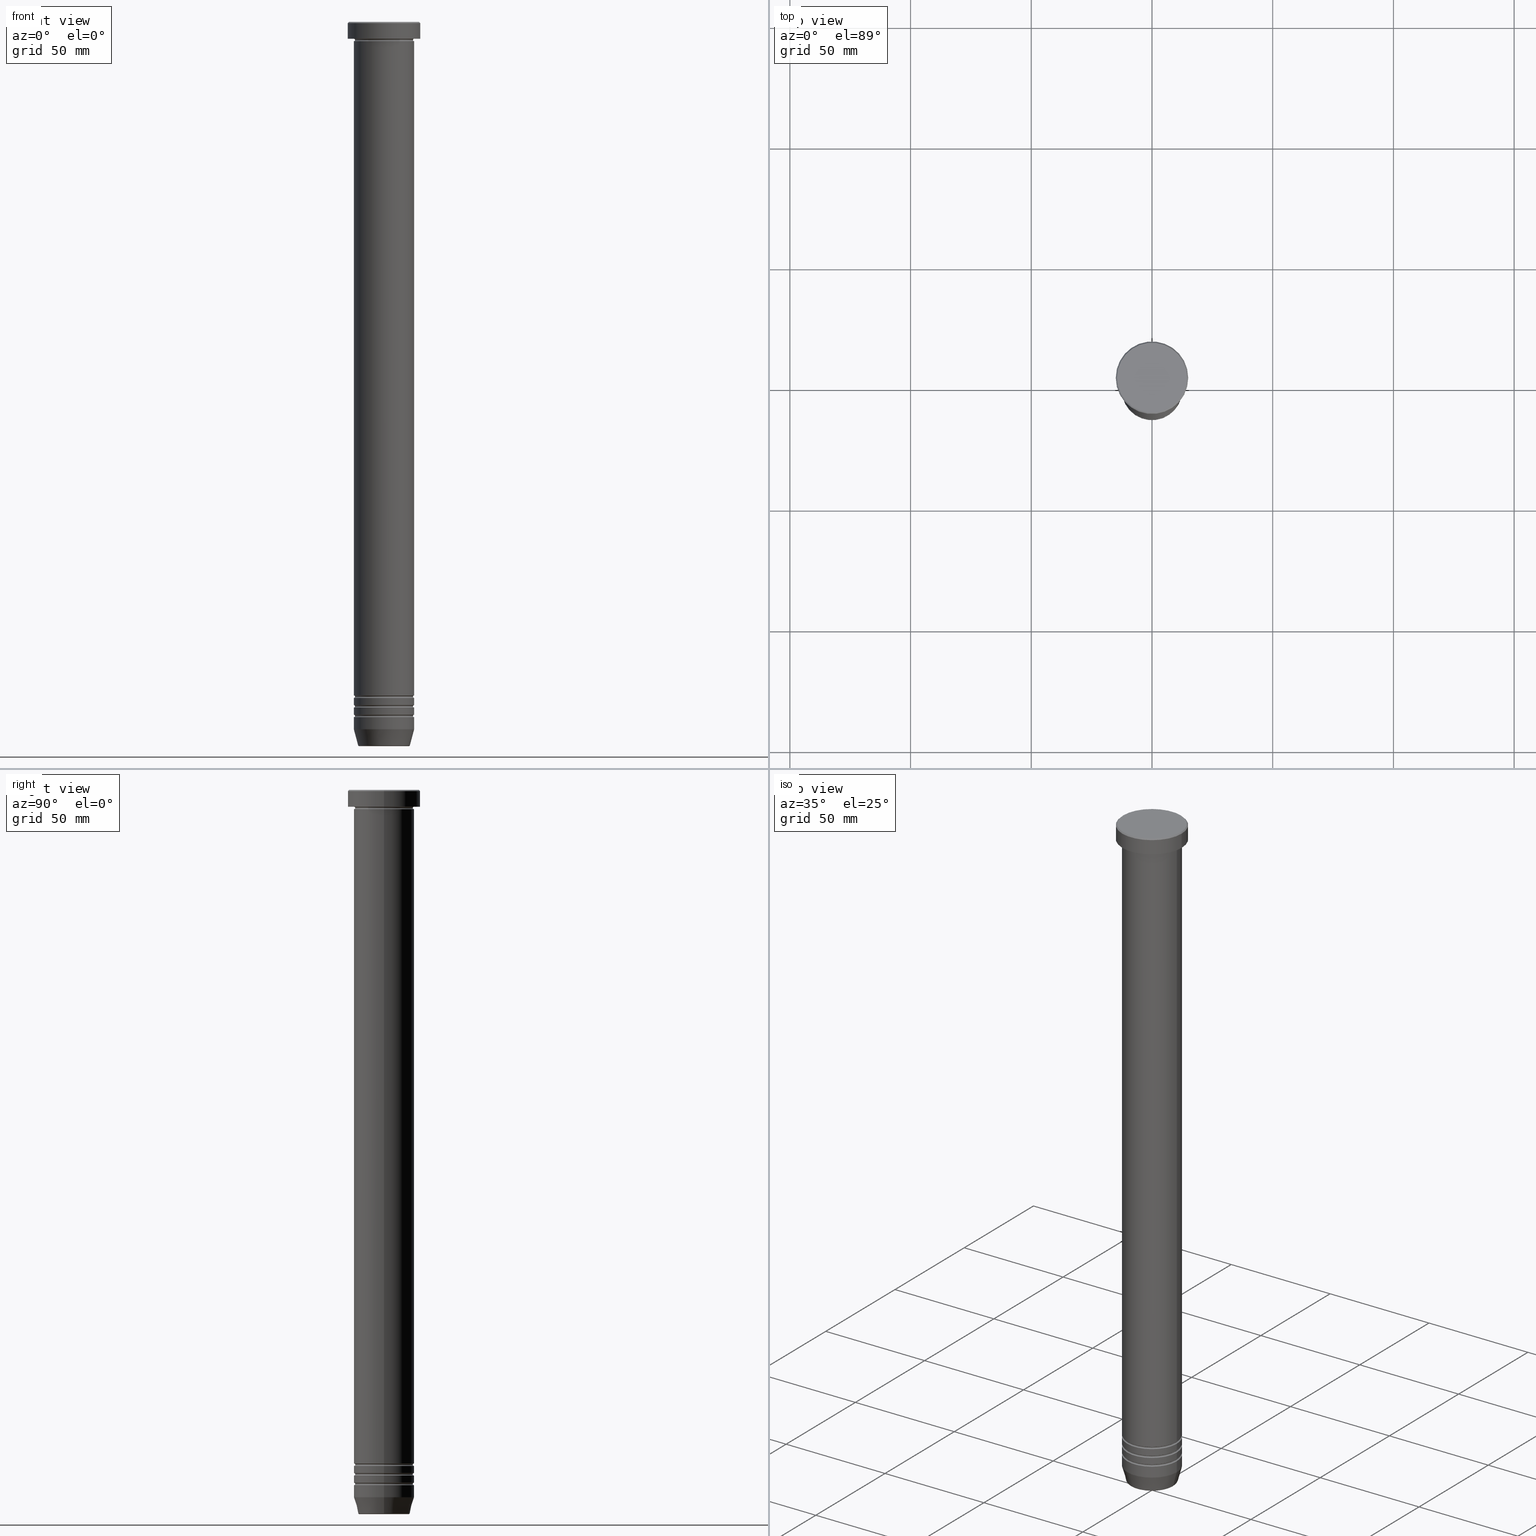
[diagram: canonical four-view strip — front | top / right | iso, engineering-drawing reading convention]
A machine part, canonical four-view strip (front | top / right | iso — engineering-drawing reading convention). The complete STEP part file that produces these views, byte-faithful:
ISO-10303-21;
HEADER;
FILE_DESCRIPTION (( 'STEP AP203' ),
    '1' );
FILE_NAME ('453b.STEP',
    '2024-01-02T20:24:10',
    ( '' ),
    ( '' ),
    'SwSTEP 2.0',
    'SolidWorks 2019',
    '' );
FILE_SCHEMA (( 'CONFIG_CONTROL_DESIGN' ));
ENDSEC;

DATA;
#1 = ORIENTED_EDGE ( 'NONE', *, *, #237, .F. ) ;
#2 = AXIS2_PLACEMENT_3D ( 'NONE', #877, #397, #165 ) ;
#3 = DIRECTION ( 'NONE',  ( -0.7071067811865414665, 0.000000000000000000, -0.7071067811865536790 ) ) ;
#4 = CARTESIAN_POINT ( 'NONE',  ( 15.00000000000000000, 0.000000000000000000, -0.5000000000000038858 ) ) ;
#5 = CARTESIAN_POINT ( 'NONE',  ( 0.000000000000000000, 0.000000000000000000, -283.0000000000000568 ) ) ;
#6 = ADVANCED_FACE ( 'NONE', ( #462 ), #383, .T. ) ;
#7 = ORIENTED_EDGE ( 'NONE', *, *, #678, .F. ) ;
#8 = COORDINATED_UNIVERSAL_TIME_OFFSET ( 1, 0, .AHEAD. ) ;
#9 = DIRECTION ( 'NONE',  ( 1.000000000000000000, 0.000000000000000000, 0.000000000000000000 ) ) ;
#10 = DIRECTION ( 'NONE',  ( -0.000000000000000000, -0.000000000000000000, 1.000000000000000000 ) ) ;
#11 = ORIENTED_EDGE ( 'NONE', *, *, #31, .T. ) ;
#12 = CIRCLE ( 'NONE', #388, 12.49999999999999289 ) ;
#13 = AXIS2_PLACEMENT_3D ( 'NONE', #369, #616, #703 ) ;
#14 = DIRECTION ( 'NONE',  ( 1.000000000000000000, 0.000000000000000000, 0.000000000000000000 ) ) ;
#15 = TOROIDAL_SURFACE ( 'NONE', #633, 12.49999999999999645, 0.5000000000000000000 ) ;
#16 = EDGE_LOOP ( 'NONE', ( #372, #721, #419, #704 ) ) ;
#17 = COORDINATED_UNIVERSAL_TIME_OFFSET ( 1, 0, .AHEAD. ) ;
#18 = ADVANCED_FACE ( 'NONE', ( #713 ), #800, .T. ) ;
#19 = AXIS2_PLACEMENT_3D ( 'NONE', #391, #630, #894 ) ;
#20 = FACE_OUTER_BOUND ( 'NONE', #286, .T. ) ;
#21 = CARTESIAN_POINT ( 'NONE',  ( 0.000000000000000000, 0.000000000000000000, -7.500000000000000000 ) ) ;
#22 = ORIENTED_EDGE ( 'NONE', *, *, #526, .T. ) ;
#23 = TOROIDAL_SURFACE ( 'NONE', #160, 12.50000000000000000, 0.5000000000000000000 ) ;
#24 = CC_DESIGN_APPROVAL ( #418, ( #54 ) ) ;
#25 = PERSON_AND_ORGANIZATION_ROLE ( 'creator' ) ;
#26 = ADVANCED_FACE ( 'NONE', ( #534 ), #23, .F. ) ;
#27 = CARTESIAN_POINT ( 'NONE',  ( 12.49999999999999645, 0.000000000000000000, -287.5000000000000568 ) ) ;
#28 = CARTESIAN_POINT ( 'NONE',  ( -12.49999999999999289, 1.530808498934190930E-15, -279.0000000000000000 ) ) ;
#29 = VERTEX_POINT ( 'NONE', #387 ) ;
#30 = FACE_OUTER_BOUND ( 'NONE', #876, .T. ) ;
#31 = EDGE_CURVE ( 'NONE', #1021, #978, #860, .T. ) ;
#32 = CIRCLE ( 'NONE', #736, 10.24069215899265828 ) ;
#33 = VERTEX_POINT ( 'NONE', #394 ) ;
#34 = DESIGN_CONTEXT ( 'detailed design', #94, 'design' ) ;
#35 = DIRECTION ( 'NONE',  ( 0.000000000000000000, 0.000000000000000000, -1.000000000000000000 ) ) ;
#36 = LOCAL_TIME ( 21, 24, 10.00000000000000000, #903 ) ;
#37 = DIRECTION ( 'NONE',  ( -0.000000000000000000, -0.000000000000000000, 1.000000000000000000 ) ) ;
#38 = APPLICATION_CONTEXT ( 'configuration controlled 3d designs of mechanical parts and assemblies' ) ;
#39 = EDGE_CURVE ( 'NONE', #456, #217, #1049, .T. ) ;
#40 = ORIENTED_EDGE ( 'NONE', *, *, #827, .F. ) ;
#41 = CARTESIAN_POINT ( 'NONE',  ( 11.99999999999999645, 0.000000000000000000, -279.5000000000000000 ) ) ;
#42 = FACE_OUTER_BOUND ( 'NONE', #988, .T. ) ;
#43 = CARTESIAN_POINT ( 'NONE',  ( -10.62435565298213547, 1.301108314342765923E-15, -300.0000000000000000 ) ) ;
#44 = EDGE_LOOP ( 'NONE', ( #423, #629, #1013, #405 ) ) ;
#45 = DIRECTION ( 'NONE',  ( -0.000000000000000000, -0.000000000000000000, 1.000000000000000000 ) ) ;
#46 = DIRECTION ( 'NONE',  ( 1.000000000000000000, 0.000000000000000000, 0.000000000000000000 ) ) ;
#47 = EDGE_LOOP ( 'NONE', ( #731, #481 ) ) ;
#48 = AXIS2_PLACEMENT_3D ( 'NONE', #788, #363, #211 ) ;
#49 = ORIENTED_EDGE ( 'NONE', *, *, #212, .T. ) ;
#50 = CIRCLE ( 'NONE', #204, 0.5000000000000004441 ) ;
#51 = DIRECTION ( 'NONE',  ( -0.000000000000000000, -0.000000000000000000, 1.000000000000000000 ) ) ;
#52 = ADVANCED_FACE ( 'NONE', ( #1061 ), #491, .T. ) ;
#53 = DIRECTION ( 'NONE',  ( -0.000000000000000000, -0.000000000000000000, 1.000000000000000000 ) ) ;
#54 = SECURITY_CLASSIFICATION ( '', '', #664 ) ;
#55 = ORIENTED_EDGE ( 'NONE', *, *, #237, .T. ) ;
#56 = PLANE ( 'NONE',  #1024 ) ;
#57 = CLOSED_SHELL ( 'NONE', ( #402, #963, #269, #169, #6, #793, #954, #1047, #221, #766, #26, #513, #936 ) ) ;
#58 = EDGE_CURVE ( 'NONE', #260, #81, #80, .T. ) ;
#59 = DIRECTION ( 'NONE',  ( -1.000000000000000000, 0.000000000000000000, 0.000000000000000000 ) ) ;
#60 = ORIENTED_EDGE ( 'NONE', *, *, #595, .T. ) ;
#61 = ORIENTED_EDGE ( 'NONE', *, *, #1033, .T. ) ;
#62 = CARTESIAN_POINT ( 'NONE',  ( 0.000000000000000000, 0.000000000000000000, -0.5000000000000038858 ) ) ;
#63 = EDGE_CURVE ( 'NONE', #808, #960, #982, .T. ) ;
#64 = VERTEX_POINT ( 'NONE', #807 ) ;
#65 = AXIS2_PLACEMENT_3D ( 'NONE', #236, #828, #896 ) ;
#66 = CIRCLE ( 'NONE', #545, 10.24069215899265828 ) ;
#67 = CARTESIAN_POINT ( 'NONE',  ( 0.000000000000000000, 0.000000000000000000, -283.5000000000000568 ) ) ;
#68 = AXIS2_PLACEMENT_3D ( 'NONE', #895, #409, #969 ) ;
#69 = FACE_OUTER_BOUND ( 'NONE', #881, .T. ) ;
#70 = CARTESIAN_POINT ( 'NONE',  ( 0.000000000000000000, 0.000000000000000000, -287.5000000000000568 ) ) ;
#71 = ORGANIZATION ( 'NEUR�EN�', 'NEUR�EN�', '' ) ;
#72 = PRODUCT_RELATED_PRODUCT_CATEGORY ( 'detail', '', ( #380 ) ) ;
#73 = ORIENTED_EDGE ( 'NONE', *, *, #144, .T. ) ;
#74 = DIRECTION ( 'NONE',  ( -0.000000000000000000, -1.000000000000000000, -0.000000000000000000 ) ) ;
#75 = DIRECTION ( 'NONE',  ( -0.000000000000000000, -0.000000000000000000, 1.000000000000000000 ) ) ;
#76 = DIRECTION ( 'NONE',  ( 1.000000000000000000, 0.000000000000000000, 0.000000000000000000 ) ) ;
#77 = ORIENTED_EDGE ( 'NONE', *, *, #84, .F. ) ;
#78 = LINE ( 'NONE', #972, #911 ) ;
#79 = DIRECTION ( 'NONE',  ( -0.000000000000000000, -0.000000000000000000, 1.000000000000000000 ) ) ;
#80 = LINE ( 'NONE', #477, #179 ) ;
#81 = VERTEX_POINT ( 'NONE', #573 ) ;
#82 = CYLINDRICAL_SURFACE ( 'NONE', #1011, 15.00000000000000000 ) ;
#83 = AXIS2_PLACEMENT_3D ( 'NONE', #773, #37, #693 ) ;
#84 = EDGE_CURVE ( 'NONE', #29, #168, #536, .T. ) ;
#85 = CARTESIAN_POINT ( 'NONE',  ( 0.000000000000000000, 0.000000000000000000, -287.0000000000000568 ) ) ;
#86 = CIRCLE ( 'NONE', #1060, 12.49999999999999289 ) ;
#87 = CARTESIAN_POINT ( 'NONE',  ( 10.62435565298213547, 0.000000000000000000, -300.0000000000000000 ) ) ;
#88 = ORIENTED_EDGE ( 'NONE', *, *, #144, .F. ) ;
#89 = CIRCLE ( 'NONE', #944, 0.5000000000000004441 ) ;
#90 = APPROVAL_STATUS ( 'not_yet_approved' ) ;
#91 = DIRECTION ( 'NONE',  ( -0.000000000000000000, -0.000000000000000000, 1.000000000000000000 ) ) ;
#92 = CC_DESIGN_DATE_AND_TIME_ASSIGNMENT ( #576, #1003, ( #150 ) ) ;
#93 = DIRECTION ( 'NONE',  ( -0.000000000000000000, -0.000000000000000000, 1.000000000000000000 ) ) ;
#94 = APPLICATION_CONTEXT ( 'configuration controlled 3d designs of mechanical parts and assemblies' ) ;
#95 = VERTEX_POINT ( 'NONE', #1051 ) ;
#96 = ADVANCED_BREP_SHAPE_REPRESENTATION ( '453b', ( #493, #838, #109 ), #961 ) ;
#97 = DIRECTION ( 'NONE',  ( 1.000000000000000000, 0.000000000000000000, 0.000000000000000000 ) ) ;
#98 = PLANE ( 'NONE',  #770 ) ;
#99 = EDGE_CURVE ( 'NONE', #909, #650, #241, .T. ) ;
#100 = ORIENTED_EDGE ( 'NONE', *, *, #132, .T. ) ;
#101 = PERSON_AND_ORGANIZATION_ROLE ( 'design_owner' ) ;
#102 = CIRCLE ( 'NONE', #249, 12.49999999999999822 ) ;
#103 = LINE ( 'NONE', #507, #702 ) ;
#104 = CARTESIAN_POINT ( 'NONE',  ( 12.49999999999999289, 0.000000000000000000, -279.0000000000000000 ) ) ;
#105 = AXIS2_PLACEMENT_3D ( 'NONE', #129, #781, #861 ) ;
#106 = ORIENTED_EDGE ( 'NONE', *, *, #289, .F. ) ;
#107 = EDGE_CURVE ( 'NONE', #585, #553, #321, .T. ) ;
#108 = PERSON_AND_ORGANIZATION ( #593, #71 ) ;
#109 = AXIS2_PLACEMENT_3D ( 'NONE', #597, #257, #830 ) ;
#110 = DIRECTION ( 'NONE',  ( 1.000000000000000000, 0.000000000000000000, 0.000000000000000000 ) ) ;
#111 = APPROVAL_PERSON_ORGANIZATION ( #998, #418, #591 ) ;
#112 = DIRECTION ( 'NONE',  ( 1.000000000000000000, 0.000000000000000000, 0.000000000000000000 ) ) ;
#113 = VERTEX_POINT ( 'NONE', #743 ) ;
#114 = VECTOR ( 'NONE', #730, 1000.000000000000000 ) ;
#115 = CYLINDRICAL_SURFACE ( 'NONE', #337, 12.50000000000000000 ) ;
#116 = EDGE_CURVE ( 'NONE', #239, #759, #102, .T. ) ;
#117 = CARTESIAN_POINT ( 'NONE',  ( 0.000000000000000000, 1.734723475976807094E-15, -60.00000000000000000 ) ) ;
#118 = ORIENTED_EDGE ( 'NONE', *, *, #495, .F. ) ;
#119 = DIRECTION ( 'NONE',  ( 1.224646799147353207E-16, 1.000000000000000000, 0.000000000000000000 ) ) ;
#120 = CC_DESIGN_PERSON_AND_ORGANIZATION_ASSIGNMENT ( #108, #333, ( #637 ) ) ;
#121 = DIRECTION ( 'NONE',  ( 1.000000000000000000, 0.000000000000000000, 0.000000000000000000 ) ) ;
#122 = VECTOR ( 'NONE', #53, 1000.000000000000000 ) ;
#123 = ORIENTED_EDGE ( 'NONE', *, *, #1006, .T. ) ;
#124 = VECTOR ( 'NONE', #567, 1000.000000000000000 ) ;
#125 = FACE_OUTER_BOUND ( 'NONE', #902, .T. ) ;
#126 = CIRCLE ( 'NONE', #192, 0.5000000000000004441 ) ;
#127 = DIRECTION ( 'NONE',  ( -1.224646799147353207E-16, 1.000000000000000000, 0.000000000000000000 ) ) ;
#128 = VERTEX_POINT ( 'NONE', #399 ) ;
#129 = CARTESIAN_POINT ( 'NONE',  ( 0.000000000000000000, 0.000000000000000000, -299.6294095225512137 ) ) ;
#130 = DIRECTION ( 'NONE',  ( 1.000000000000000000, 0.000000000000000000, 0.000000000000000000 ) ) ;
#131 = ORIENTED_EDGE ( 'NONE', *, *, #361, .F. ) ;
#132 = EDGE_CURVE ( 'NONE', #960, #864, #350, .T. ) ;
#133 = DIRECTION ( 'NONE',  ( -0.000000000000000000, -1.000000000000000000, -0.000000000000000000 ) ) ;
#134 = CARTESIAN_POINT ( 'NONE',  ( 0.000000000000000000, 0.000000000000000000, -283.0000000000000568 ) ) ;
#135 = ORIENTED_EDGE ( 'NONE', *, *, #656, .T. ) ;
#136 = AXIS2_PLACEMENT_3D ( 'NONE', #21, #444, #607 ) ;
#137 = AXIS2_PLACEMENT_3D ( 'NONE', #917, #582, #844 ) ;
#138 = EDGE_CURVE ( 'NONE', #1044, #585, #300, .T. ) ;
#139 = FACE_OUTER_BOUND ( 'NONE', #463, .T. ) ;
#140 = CARTESIAN_POINT ( 'NONE',  ( 0.000000000000000000, 0.000000000000000000, -279.5000000000000000 ) ) ;
#141 = CIRCLE ( 'NONE', #740, 0.5000000000000004441 ) ;
#142 = ORIENTED_EDGE ( 'NONE', *, *, #848, .T. ) ;
#143 = ORIENTED_EDGE ( 'NONE', *, *, #891, .T. ) ;
#144 = EDGE_CURVE ( 'NONE', #95, #808, #12, .T. ) ;
#145 = DIRECTION ( 'NONE',  ( 0.000000000000000000, 0.000000000000000000, -1.000000000000000000 ) ) ;
#146 = ORIENTED_EDGE ( 'NONE', *, *, #438, .T. ) ;
#147 = ORIENTED_EDGE ( 'NONE', *, *, #63, .T. ) ;
#148 =( NAMED_UNIT ( * ) PLANE_ANGLE_UNIT ( ) SI_UNIT ( $, .RADIAN. ) );
#149 = DIRECTION ( 'NONE',  ( 0.000000000000000000, -1.000000000000000000, 0.000000000000000000 ) ) ;
#150 = PRODUCT_DEFINITION ( 'NEZN�M�', '', #637, #34 ) ;
#151 = CARTESIAN_POINT ( 'NONE',  ( 0.000000000000000000, 0.000000000000000000, -293.0000000000000000 ) ) ;
#152 = TOROIDAL_SURFACE ( 'NONE', #887, 12.49999999999999645, 0.5000000000000000000 ) ;
#153 = ORIENTED_EDGE ( 'NONE', *, *, #116, .F. ) ;
#154 = CIRCLE ( 'NONE', #632, 12.50000000000000000 ) ;
#155 = AXIS2_PLACEMENT_3D ( 'NONE', #427, #91, #679 ) ;
#156 = LINE ( 'NONE', #166, #1009 ) ;
#157 = CARTESIAN_POINT ( 'NONE',  ( 0.000000000000000000, 0.000000000000000000, -288.0000000000000568 ) ) ;
#158 = ORIENTED_EDGE ( 'NONE', *, *, #281, .T. ) ;
#159 = DIRECTION ( 'NONE',  ( -0.000000000000000000, -0.000000000000000000, 1.000000000000000000 ) ) ;
#160 = AXIS2_PLACEMENT_3D ( 'NONE', #719, #612, #203 ) ;
#161 = FACE_OUTER_BOUND ( 'NONE', #373, .T. ) ;
#162 = DIRECTION ( 'NONE',  ( 1.000000000000000000, 0.000000000000000000, 0.000000000000000000 ) ) ;
#163 = ORIENTED_EDGE ( 'NONE', *, *, #39, .T. ) ;
#164 = ADVANCED_FACE ( 'NONE', ( #977 ), #368, .F. ) ;
#165 = DIRECTION ( 'NONE',  ( -1.000000000000000000, 0.000000000000000000, 0.000000000000000000 ) ) ;
#166 = CARTESIAN_POINT ( 'NONE',  ( 15.00000000000000000, 0.000000000000000000, 0.000000000000000000 ) ) ;
#167 = DIRECTION ( 'NONE',  ( -0.000000000000000000, -0.000000000000000000, 1.000000000000000000 ) ) ;
#168 = VERTEX_POINT ( 'NONE', #747 ) ;
#169 = ADVANCED_FACE ( 'NONE', ( #173 ), #725, .T. ) ;
#170 = CIRCLE ( 'NONE', #717, 12.49999999999999822 ) ;
#171 = CARTESIAN_POINT ( 'NONE',  ( 12.50000000000000000, 0.000000000000000000, 0.000000000000000000 ) ) ;
#172 = TOROIDAL_SURFACE ( 'NONE', #155, 10.24069215899265828, 0.5000000000000000000 ) ;
#173 = FACE_OUTER_BOUND ( 'NONE', #195, .T. ) ;
#174 = EDGE_LOOP ( 'NONE', ( #40, #945, #710, #635 ) ) ;
#175 = AXIS2_PLACEMENT_3D ( 'NONE', #1025, #297, #287 ) ;
#176 = APPROVAL_STATUS ( 'not_yet_approved' ) ;
#177 = CARTESIAN_POINT ( 'NONE',  ( 12.50000000000000000, 1.530808498934191521E-15, -7.500000000000000000 ) ) ;
#178 = ADVANCED_FACE ( 'NONE', ( #417 ), #152, .F. ) ;
#179 = VECTOR ( 'NONE', #1056, 1000.000000000000000 ) ;
#180 = CARTESIAN_POINT ( 'NONE',  ( 0.000000000000000000, 0.000000000000000000, -287.5000000000000568 ) ) ;
#181 = ORIENTED_EDGE ( 'NONE', *, *, #784, .T. ) ;
#182 = COORDINATED_UNIVERSAL_TIME_OFFSET ( 1, 0, .AHEAD. ) ;
#183 = DIRECTION ( 'NONE',  ( -0.000000000000000000, -0.000000000000000000, 1.000000000000000000 ) ) ;
#184 = DIRECTION ( 'NONE',  ( 0.000000000000000000, 0.000000000000000000, -1.000000000000000000 ) ) ;
#185 = ADVANCED_FACE ( 'NONE', ( #735 ), #561, .F. ) ;
#186 = ORIENTED_EDGE ( 'NONE', *, *, #196, .F. ) ;
#187 = CYLINDRICAL_SURFACE ( 'NONE', #533, 12.50000000000000000 ) ;
#188 = AXIS2_PLACEMENT_3D ( 'NONE', #293, #278, #952 ) ;
#189 = DIRECTION ( 'NONE',  ( 1.000000000000000000, 0.000000000000000000, 0.000000000000000000 ) ) ;
#190 = AXIS2_PLACEMENT_3D ( 'NONE', #1010, #416, #9 ) ;
#191 = ORIENTED_EDGE ( 'NONE', *, *, #58, .T. ) ;
#192 = AXIS2_PLACEMENT_3D ( 'NONE', #871, #119, #776 ) ;
#193 = CIRCLE ( 'NONE', #412, 0.5000000000000004441 ) ;
#194 = DIRECTION ( 'NONE',  ( -0.000000000000000000, -0.000000000000000000, 1.000000000000000000 ) ) ;
#195 = EDGE_LOOP ( 'NONE', ( #727, #847, #1017, #291 ) ) ;
#196 = EDGE_CURVE ( 'NONE', #553, #978, #667, .T. ) ;
#197 = DIRECTION ( 'NONE',  ( -1.000000000000000000, 0.000000000000000000, 0.000000000000000000 ) ) ;
#198 = ORIENTED_EDGE ( 'NONE', *, *, #138, .T. ) ;
#199 = DIRECTION ( 'NONE',  ( 0.000000000000000000, -1.000000000000000000, 0.000000000000000000 ) ) ;
#200 = CARTESIAN_POINT ( 'NONE',  ( 12.49999999999999645, 1.530808498934191127E-15, -283.5000000000000568 ) ) ;
#201 = AXIS2_PLACEMENT_3D ( 'NONE', #310, #93, #884 ) ;
#202 = AXIS2_PLACEMENT_3D ( 'NONE', #1026, #298, #959 ) ;
#203 = DIRECTION ( 'NONE',  ( 1.000000000000000000, 0.000000000000000000, 0.000000000000000000 ) ) ;
#204 = AXIS2_PLACEMENT_3D ( 'NONE', #433, #511, #826 ) ;
#205 = DIRECTION ( 'NONE',  ( 1.224646799147353207E-16, 1.000000000000000000, 0.000000000000000000 ) ) ;
#206 = CARTESIAN_POINT ( 'NONE',  ( -12.50000000000000000, 0.000000000000000000, -6.999999999999999112 ) ) ;
#207 = EDGE_CURVE ( 'NONE', #705, #538, #499, .T. ) ;
#208 = ORIENTED_EDGE ( 'NONE', *, *, #138, .F. ) ;
#209 = ORIENTED_EDGE ( 'NONE', *, *, #912, .T. ) ;
#210 = CARTESIAN_POINT ( 'NONE',  ( -12.49999999999999645, 0.000000000000000000, -279.5000000000000000 ) ) ;
#211 = DIRECTION ( 'NONE',  ( 1.000000000000000000, 0.000000000000000000, 0.000000000000000000 ) ) ;
#212 = EDGE_CURVE ( 'NONE', #64, #1044, #32, .T. ) ;
#213 = DIRECTION ( 'NONE',  ( 1.000000000000000000, 0.000000000000000000, 0.000000000000000000 ) ) ;
#214 = ORIENTED_EDGE ( 'NONE', *, *, #622, .T. ) ;
#215 = DIRECTION ( 'NONE',  ( 1.000000000000000000, 0.000000000000000000, 0.000000000000000000 ) ) ;
#216 = DIRECTION ( 'NONE',  ( 0.000000000000000000, 0.000000000000000000, -1.000000000000000000 ) ) ;
#217 = VERTEX_POINT ( 'NONE', #918 ) ;
#218 = CIRCLE ( 'NONE', #334, 0.5000000000000004441 ) ;
#219 = EDGE_LOOP ( 'NONE', ( #834, #285, #328, #617 ) ) ;
#220 = AXIS2_PLACEMENT_3D ( 'NONE', #646, #572, #392 ) ;
#221 = ADVANCED_FACE ( 'NONE', ( #512, #254 ), #583, .T. ) ;
#222 = CARTESIAN_POINT ( 'NONE',  ( 0.000000000000000000, 0.000000000000000000, -279.5000000000000000 ) ) ;
#223 = CC_DESIGN_APPROVAL ( #549, ( #150 ) ) ;
#224 = ORIENTED_EDGE ( 'NONE', *, *, #486, .T. ) ;
#225 = ORIENTED_EDGE ( 'NONE', *, *, #313, .F. ) ;
#226 = LINE ( 'NONE', #980, #706 ) ;
#227 = EDGE_CURVE ( 'NONE', #274, #962, #233, .T. ) ;
#228 = DIRECTION ( 'NONE',  ( -0.000000000000000000, -0.000000000000000000, 1.000000000000000000 ) ) ;
#229 = ORIENTED_EDGE ( 'NONE', *, *, #295, .T. ) ;
#230 = DIRECTION ( 'NONE',  ( 1.000000000000000000, 0.000000000000000000, 0.000000000000000000 ) ) ;
#231 = DIRECTION ( 'NONE',  ( -1.000000000000000000, 0.000000000000000000, 0.000000000000000000 ) ) ;
#232 = ORIENTED_EDGE ( 'NONE', *, *, #784, .F. ) ;
#233 = CIRCLE ( 'NONE', #425, 11.99999999999999645 ) ;
#234 = CARTESIAN_POINT ( 'NONE',  ( -12.49999999999999645, 1.530808498934191127E-15, -283.5000000000000568 ) ) ;
#235 = DIRECTION ( 'NONE',  ( -0.000000000000000000, -0.000000000000000000, 1.000000000000000000 ) ) ;
#236 = CARTESIAN_POINT ( 'NONE',  ( 0.000000000000000000, 0.000000000000000000, -283.5000000000000568 ) ) ;
#237 = EDGE_CURVE ( 'NONE', #864, #685, #839, .T. ) ;
#238 = LOCAL_TIME ( 21, 24, 10.00000000000000000, #8 ) ;
#239 = VERTEX_POINT ( 'NONE', #508 ) ;
#240 = DIRECTION ( 'NONE',  ( -0.000000000000000000, -0.000000000000000000, 1.000000000000000000 ) ) ;
#241 = CIRCLE ( 'NONE', #571, 11.99999999999999645 ) ;
#242 = PLANE ( 'NONE',  #546 ) ;
#243 = DIRECTION ( 'NONE',  ( -0.000000000000000000, -0.000000000000000000, 1.000000000000000000 ) ) ;
#244 = EDGE_CURVE ( 'NONE', #339, #625, #389, .T. ) ;
#245 = ORIENTED_EDGE ( 'NONE', *, *, #912, .F. ) ;
#246 = DIRECTION ( 'NONE',  ( -0.000000000000000000, -0.000000000000000000, 1.000000000000000000 ) ) ;
#247 = CARTESIAN_POINT ( 'NONE',  ( 0.000000000000000000, 0.000000000000000000, -287.0000000000000568 ) ) ;
#248 = ORIENTED_EDGE ( 'NONE', *, *, #863, .F. ) ;
#249 = AXIS2_PLACEMENT_3D ( 'NONE', #5, #167, #76 ) ;
#250 = ADVANCED_FACE ( 'NONE', ( #594 ), #98, .F. ) ;
#251 = AXIS2_PLACEMENT_3D ( 'NONE', #376, #1032, #130 ) ;
#252 = DIRECTION ( 'NONE',  ( -0.000000000000000000, -0.000000000000000000, 1.000000000000000000 ) ) ;
#253 = AXIS2_PLACEMENT_3D ( 'NONE', #346, #683, #592 ) ;
#254 = FACE_OUTER_BOUND ( 'NONE', #47, .T. ) ;
#255 = ORIENTED_EDGE ( 'NONE', *, *, #575, .T. ) ;
#256 = CIRCLE ( 'NONE', #790, 11.99999999999999645 ) ;
#257 = DIRECTION ( 'NONE',  ( 0.000000000000000000, 0.000000000000000000, 1.000000000000000000 ) ) ;
#258 = EDGE_CURVE ( 'NONE', #344, #349, #684, .T. ) ;
#259 = CARTESIAN_POINT ( 'NONE',  ( -12.50000000000000000, 1.530808498934191521E-15, -280.0000000000000000 ) ) ;
#260 = VERTEX_POINT ( 'NONE', #104 ) ;
#261 = PERSON_AND_ORGANIZATION ( #593, #71 ) ;
#262 = DIRECTION ( 'NONE',  ( 1.000000000000000000, 0.000000000000000000, 0.000000000000000000 ) ) ;
#263 = CARTESIAN_POINT ( 'NONE',  ( -12.50000000000000000, 1.530808498934191521E-15, -7.500000000000000000 ) ) ;
#264 = ORIENTED_EDGE ( 'NONE', *, *, #924, .F. ) ;
#265 = CYLINDRICAL_SURFACE ( 'NONE', #284, 12.49999999999999645 ) ;
#266 = AXIS2_PLACEMENT_3D ( 'NONE', #359, #696, #450 ) ;
#267 = DIRECTION ( 'NONE',  ( 0.000000000000000000, 0.000000000000000000, -1.000000000000000000 ) ) ;
#268 = AXIS2_PLACEMENT_3D ( 'NONE', #643, #476, #559 ) ;
#269 = ADVANCED_FACE ( 'NONE', ( #30 ), #613, .F. ) ;
#270 = EDGE_LOOP ( 'NONE', ( #791, #143, #768, #279 ) ) ;
#271 = CIRCLE ( 'NONE', #430, 12.50000000000000000 ) ;
#272 = FACE_OUTER_BOUND ( 'NONE', #668, .T. ) ;
#273 = DIRECTION ( 'NONE',  ( -0.000000000000000000, -0.000000000000000000, 1.000000000000000000 ) ) ;
#274 = VERTEX_POINT ( 'NONE', #1012 ) ;
#275 = CC_DESIGN_PERSON_AND_ORGANIZATION_ASSIGNMENT ( #764, #101, ( #380 ) ) ;
#276 = PRODUCT_DEFINITION_SHAPE ( 'NONE', 'NONE',  #150 ) ;
#277 = CYLINDRICAL_SURFACE ( 'NONE', #564, 12.50000000000000000 ) ;
#278 = DIRECTION ( 'NONE',  ( 0.000000000000000000, 0.000000000000000000, -1.000000000000000000 ) ) ;
#279 = ORIENTED_EDGE ( 'NONE', *, *, #466, .T. ) ;
#280 = DIRECTION ( 'NONE',  ( -1.000000000000000000, 0.000000000000000000, -0.000000000000000000 ) ) ;
#281 = EDGE_CURVE ( 'NONE', #81, #128, #598, .T. ) ;
#282 = CARTESIAN_POINT ( 'NONE',  ( -12.50000000000000000, 1.530808498934191521E-15, 0.000000000000000000 ) ) ;
#283 = TOROIDAL_SURFACE ( 'NONE', #352, 12.49999999999999645, 0.5000000000000000000 ) ;
#284 = AXIS2_PLACEMENT_3D ( 'NONE', #756, #836, #665 ) ;
#285 = ORIENTED_EDGE ( 'NONE', *, *, #799, .T. ) ;
#286 = EDGE_LOOP ( 'NONE', ( #874, #209, #919, #208 ) ) ;
#287 = DIRECTION ( 'NONE',  ( 1.000000000000000000, 0.000000000000000000, 0.000000000000000000 ) ) ;
#288 = AXIS2_PLACEMENT_3D ( 'NONE', #558, #815, #645 ) ;
#289 = EDGE_CURVE ( 'NONE', #625, #168, #154, .T. ) ;
#290 = EDGE_LOOP ( 'NONE', ( #360, #214, #225, #818 ) ) ;
#291 = ORIENTED_EDGE ( 'NONE', *, *, #690, .F. ) ;
#292 = FACE_OUTER_BOUND ( 'NONE', #775, .T. ) ;
#293 = CARTESIAN_POINT ( 'NONE',  ( 0.000000000000000000, 0.000000000000000000, -283.5000000000000568 ) ) ;
#294 = DIRECTION ( 'NONE',  ( -0.000000000000000000, -0.000000000000000000, 1.000000000000000000 ) ) ;
#295 = EDGE_CURVE ( 'NONE', #339, #29, #563, .T. ) ;
#296 = ORIENTED_EDGE ( 'NONE', *, *, #1038, .F. ) ;
#297 = DIRECTION ( 'NONE',  ( -0.000000000000000000, -0.000000000000000000, 1.000000000000000000 ) ) ;
#298 = DIRECTION ( 'NONE',  ( -0.000000000000000000, -0.000000000000000000, 1.000000000000000000 ) ) ;
#299 = ORIENTED_EDGE ( 'NONE', *, *, #244, .F. ) ;
#300 = CIRCLE ( 'NONE', #906, 0.5000000000000004441 ) ;
#301 = AXIS2_PLACEMENT_3D ( 'NONE', #914, #523, #751 ) ;
#302 = ADVANCED_FACE ( 'NONE', ( #845 ), #973, .F. ) ;
#303 = CIRCLE ( 'NONE', #737, 11.99999999999999645 ) ;
#304 = DIRECTION ( 'NONE',  ( -1.000000000000000000, 1.224646799147353454E-16, 0.000000000000000000 ) ) ;
#305 = CARTESIAN_POINT ( 'NONE',  ( 15.00000000000000000, 0.000000000000000000, -6.999999999999998224 ) ) ;
#306 = CIRCLE ( 'NONE', #550, 0.5000000000000004441 ) ;
#307 = CARTESIAN_POINT ( 'NONE',  ( 0.000000000000000000, 0.000000000000000000, -279.5000000000000000 ) ) ;
#308 = ORIENTED_EDGE ( 'NONE', *, *, #332, .T. ) ;
#309 = CARTESIAN_POINT ( 'NONE',  ( -12.50000000000000000, 1.530808498934191521E-15, 0.000000000000000000 ) ) ;
#310 = CARTESIAN_POINT ( 'NONE',  ( 0.000000000000000000, 0.000000000000000000, 0.000000000000000000 ) ) ;
#311 = ORIENTED_EDGE ( 'NONE', *, *, #708, .T. ) ;
#312 = DIRECTION ( 'NONE',  ( -0.000000000000000000, -0.000000000000000000, 1.000000000000000000 ) ) ;
#313 = EDGE_CURVE ( 'NONE', #217, #456, #907, .T. ) ;
#314 = CARTESIAN_POINT ( 'NONE',  ( 12.50000000000000000, 0.000000000000000000, -7.500000000000000000 ) ) ;
#315 = ORIENTED_EDGE ( 'NONE', *, *, #410, .F. ) ;
#316 = CIRCLE ( 'NONE', #803, 11.99999999999999645 ) ;
#317 = TOROIDAL_SURFACE ( 'NONE', #872, 12.50000000000000000, 0.5000000000000000000 ) ;
#318 = FACE_OUTER_BOUND ( 'NONE', #694, .T. ) ;
#319 = CARTESIAN_POINT ( 'NONE',  ( 14.50000000000000355, 1.775737858763662804E-15, 0.000000000000000000 ) ) ;
#320 = ADVANCED_FACE ( 'NONE', ( #435 ), #283, .F. ) ;
#321 = LINE ( 'NONE', #87, #114 ) ;
#322 = CIRCLE ( 'NONE', #652, 0.5000000000000004441 ) ;
#323 = VERTEX_POINT ( 'NONE', #28 ) ;
#324 = DATE_AND_TIME ( #341, #654 ) ;
#325 = CARTESIAN_POINT ( 'NONE',  ( 0.000000000000000000, 3.061616997868383121E-14, -300.0000000000000000 ) ) ;
#326 = DIRECTION ( 'NONE',  ( -0.000000000000000000, -0.000000000000000000, 1.000000000000000000 ) ) ;
#327 = ADVANCED_FACE ( 'NONE', ( #666 ), #991, .T. ) ;
#328 = ORIENTED_EDGE ( 'NONE', *, *, #1038, .T. ) ;
#329 = PERSON_AND_ORGANIZATION ( #593, #71 ) ;
#330 = DIRECTION ( 'NONE',  ( 1.000000000000000000, 0.000000000000000000, 0.000000000000000000 ) ) ;
#331 = ORIENTED_EDGE ( 'NONE', *, *, #258, .T. ) ;
#332 = EDGE_CURVE ( 'NONE', #323, #128, #540, .T. ) ;
#333 = PERSON_AND_ORGANIZATION_ROLE ( 'design_supplier' ) ;
#334 = AXIS2_PLACEMENT_3D ( 'NONE', #200, #127, #532 ) ;
#335 = VECTOR ( 'NONE', #777, 1000.000000000000000 ) ;
#336 = DIRECTION ( 'NONE',  ( -0.000000000000000000, -0.000000000000000000, 1.000000000000000000 ) ) ;
#337 = AXIS2_PLACEMENT_3D ( 'NONE', #995, #439, #750 ) ;
#338 = CARTESIAN_POINT ( 'NONE',  ( -12.49999999999999645, 0.000000000000000000, -283.5000000000000568 ) ) ;
#339 = VERTEX_POINT ( 'NONE', #873 ) ;
#340 = CIRCLE ( 'NONE', #859, 12.49999999999999289 ) ;
#341 = CALENDAR_DATE ( 2024, 2, 1 ) ;
#342 = DIRECTION ( 'NONE',  ( 1.000000000000000000, 0.000000000000000000, 0.000000000000000000 ) ) ;
#343 = CARTESIAN_POINT ( 'NONE',  ( 0.000000000000000000, 0.000000000000000000, -288.0000000000000568 ) ) ;
#344 = VERTEX_POINT ( 'NONE', #943 ) ;
#345 = APPROVAL_DATE_TIME ( #431, #418 ) ;
#346 = CARTESIAN_POINT ( 'NONE',  ( 0.000000000000000000, 0.000000000000000000, -299.5000000000000000 ) ) ;
#347 = ADVANCED_FACE ( 'NONE', ( #42 ), #1022, .F. ) ;
#348 = CARTESIAN_POINT ( 'NONE',  ( 0.000000000000000000, 0.000000000000000000, -300.0000000000000000 ) ) ;
#349 = VERTEX_POINT ( 'NONE', #948 ) ;
#350 = CIRCLE ( 'NONE', #769, 12.50000000000000000 ) ;
#351 = CARTESIAN_POINT ( 'NONE',  ( 0.000000000000000000, 0.000000000000000000, -283.5000000000000568 ) ) ;
#352 = AXIS2_PLACEMENT_3D ( 'NONE', #601, #929, #330 ) ;
#353 = DIRECTION ( 'NONE',  ( -1.000000000000000000, 1.224646799147353454E-16, 0.000000000000000000 ) ) ;
#354 = TOROIDAL_SURFACE ( 'NONE', #253, 10.24069215899265828, 0.5000000000000000000 ) ;
#355 = EDGE_CURVE ( 'NONE', #759, #239, #170, .T. ) ;
#356 = ORIENTED_EDGE ( 'NONE', *, *, #820, .F. ) ;
#357 = TOROIDAL_SURFACE ( 'NONE', #448, 12.49999999999999645, 0.5000000000000000000 ) ;
#358 = DIRECTION ( 'NONE',  ( -0.000000000000000000, -0.000000000000000000, 1.000000000000000000 ) ) ;
#359 = CARTESIAN_POINT ( 'NONE',  ( 0.000000000000000000, 0.000000000000000000, -293.0000000000000000 ) ) ;
#360 = ORIENTED_EDGE ( 'NONE', *, *, #196, .T. ) ;
#361 = EDGE_CURVE ( 'NONE', #984, #33, #530, .T. ) ;
#362 = DIRECTION ( 'NONE',  ( -1.000000000000000000, 1.224646799147353454E-16, 0.000000000000000000 ) ) ;
#363 = DIRECTION ( 'NONE',  ( -0.000000000000000000, -0.000000000000000000, 1.000000000000000000 ) ) ;
#364 = DIRECTION ( 'NONE',  ( -0.2588190451025213501, 3.169619151431772337E-17, 0.9659258262890680902 ) ) ;
#365 = ORIENTED_EDGE ( 'NONE', *, *, #678, .T. ) ;
#366 = ADVANCED_FACE ( 'NONE', ( #627 ), #370, .T. ) ;
#367 = CARTESIAN_POINT ( 'NONE',  ( 12.49999999999999645, 0.000000000000000000, -283.5000000000000568 ) ) ;
#368 = TOROIDAL_SURFACE ( 'NONE', #65, 12.49999999999999645, 0.5000000000000000000 ) ;
#369 = CARTESIAN_POINT ( 'NONE',  ( 0.000000000000000000, 0.000000000000000000, -8.000000000000000000 ) ) ;
#370 = CONICAL_SURFACE ( 'NONE', #251, 10.62435565298213547, 0.2617993877991500740 ) ;
#371 = VECTOR ( 'NONE', #746, 1000.000000000000000 ) ;
#372 = ORIENTED_EDGE ( 'NONE', *, *, #31, .F. ) ;
#373 = EDGE_LOOP ( 'NONE', ( #663, #49 ) ) ;
#374 = DIRECTION ( 'NONE',  ( 1.000000000000000000, 0.000000000000000000, 0.000000000000000000 ) ) ;
#375 = APPROVAL_PERSON_ORGANIZATION ( #261, #549, #510 ) ;
#376 = CARTESIAN_POINT ( 'NONE',  ( 0.000000000000000000, 0.000000000000000000, -300.0000000000000000 ) ) ;
#377 = ORIENTED_EDGE ( 'NONE', *, *, #1033, .F. ) ;
#378 = ORIENTED_EDGE ( 'NONE', *, *, #521, .F. ) ;
#379 = FACE_OUTER_BOUND ( 'NONE', #290, .T. ) ;
#380 = PRODUCT ( '453b', '453b', '', ( #760 ) ) ;
#381 = DIRECTION ( 'NONE',  ( -0.000000000000000000, -0.000000000000000000, 1.000000000000000000 ) ) ;
#382 = EDGE_CURVE ( 'NONE', #978, #553, #648, .T. ) ;
#383 = CYLINDRICAL_SURFACE ( 'NONE', #606, 15.00000000000000000 ) ;
#384 = ORIENTED_EDGE ( 'NONE', *, *, #39, .F. ) ;
#385 =( NAMED_UNIT ( * ) SI_UNIT ( $, .STERADIAN. ) SOLID_ANGLE_UNIT ( ) );
#386 = DIRECTION ( 'NONE',  ( 1.000000000000000000, 0.000000000000000000, 0.000000000000000000 ) ) ;
#387 = CARTESIAN_POINT ( 'NONE',  ( 12.00000000000000000, 0.000000000000000000, -7.500000000000000000 ) ) ;
#388 = AXIS2_PLACEMENT_3D ( 'NONE', #247, #326, #578 ) ;
#389 = CIRCLE ( 'NONE', #460, 0.5000000000000004441 ) ;
#390 = AXIS2_PLACEMENT_3D ( 'NONE', #587, #921, #110 ) ;
#391 = CARTESIAN_POINT ( 'NONE',  ( 0.000000000000000000, 0.000000000000000000, -7.500000000000000000 ) ) ;
#392 = DIRECTION ( 'NONE',  ( 1.000000000000000000, 0.000000000000000000, 0.000000000000000000 ) ) ;
#393 = VECTOR ( 'NONE', #3, 1000.000000000000000 ) ;
#394 = CARTESIAN_POINT ( 'NONE',  ( -12.50000000000000000, 1.530808498934191521E-15, -60.00000000000000000 ) ) ;
#395 = ORIENTED_EDGE ( 'NONE', *, *, #58, .F. ) ;
#396 = EDGE_CURVE ( 'NONE', #685, #681, #940, .T. ) ;
#397 = DIRECTION ( 'NONE',  ( -0.000000000000000000, -0.000000000000000000, 1.000000000000000000 ) ) ;
#398 = LINE ( 'NONE', #319, #407 ) ;
#399 = CARTESIAN_POINT ( 'NONE',  ( -12.50000000000000000, 1.530808498934191521E-15, -60.00000000000000000 ) ) ;
#400 = ORIENTED_EDGE ( 'NONE', *, *, #690, .T. ) ;
#401 = CARTESIAN_POINT ( 'NONE',  ( -12.50000000000000000, 0.000000000000000000, -7.500000000000000000 ) ) ;
#402 = ADVANCED_FACE ( 'NONE', ( #1020 ), #669, .T. ) ;
#403 = DIRECTION ( 'NONE',  ( 0.000000000000000000, 0.000000000000000000, -1.000000000000000000 ) ) ;
#404 = CARTESIAN_POINT ( 'NONE',  ( 0.000000000000000000, 0.000000000000000000, -284.0000000000000568 ) ) ;
#405 = ORIENTED_EDGE ( 'NONE', *, *, #1006, .F. ) ;
#406 = CIRCLE ( 'NONE', #1007, 0.5000000000000004441 ) ;
#407 = VECTOR ( 'NONE', #798, 1000.000000000000000 ) ;
#408 = CARTESIAN_POINT ( 'NONE',  ( 12.50000000000000000, 0.000000000000000000, -60.00000000000000000 ) ) ;
#409 = DIRECTION ( 'NONE',  ( -0.000000000000000000, -0.000000000000000000, 1.000000000000000000 ) ) ;
#410 = EDGE_CURVE ( 'NONE', #1044, #64, #66, .T. ) ;
#411 = CARTESIAN_POINT ( 'NONE',  ( 12.49999999999999645, 0.000000000000000000, 0.000000000000000000 ) ) ;
#412 = AXIS2_PLACEMENT_3D ( 'NONE', #401, #74, #732 ) ;
#413 = EDGE_LOOP ( 'NONE', ( #865, #898, #255, #763 ) ) ;
#414 = APPLICATION_PROTOCOL_DEFINITION ( 'international standard', 'config_control_design', 1994, #38 ) ;
#415 = AXIS2_PLACEMENT_3D ( 'NONE', #541, #294, #1039 ) ;
#416 = DIRECTION ( 'NONE',  ( -0.000000000000000000, -0.000000000000000000, 1.000000000000000000 ) ) ;
#417 = FACE_OUTER_BOUND ( 'NONE', #413, .T. ) ;
#418 = APPROVAL ( #659, 'NEUR�EN�' ) ;
#419 = ORIENTED_EDGE ( 'NONE', *, *, #107, .T. ) ;
#420 = CALENDAR_DATE ( 2024, 2, 1 ) ;
#421 = CARTESIAN_POINT ( 'NONE',  ( 12.49999999999999822, 0.000000000000000000, -283.0000000000000568 ) ) ;
#422 = CARTESIAN_POINT ( 'NONE',  ( 0.000000000000000000, 0.000000000000000000, -8.000000000000000000 ) ) ;
#423 = ORIENTED_EDGE ( 'NONE', *, *, #355, .T. ) ;
#424 = DATE_AND_TIME ( #420, #238 ) ;
#425 = AXIS2_PLACEMENT_3D ( 'NONE', #180, #184, #14 ) ;
#426 = CIRCLE ( 'NONE', #105, 10.72365507213719305 ) ;
#427 = CARTESIAN_POINT ( 'NONE',  ( 0.000000000000000000, 0.000000000000000000, -299.5000000000000000 ) ) ;
#428 = CARTESIAN_POINT ( 'NONE',  ( 0.000000000000000000, 0.000000000000000000, -280.0000000000000000 ) ) ;
#429 = ORIENTED_EDGE ( 'NONE', *, *, #531, .T. ) ;
#430 = AXIS2_PLACEMENT_3D ( 'NONE', #856, #442, #772 ) ;
#431 = DATE_AND_TIME ( #994, #488 ) ;
#432 = EDGE_CURVE ( 'NONE', #323, #650, #406, .T. ) ;
#433 = CARTESIAN_POINT ( 'NONE',  ( 12.49999999999999645, 1.530808498934191127E-15, -287.5000000000000568 ) ) ;
#434 = AXIS2_PLACEMENT_3D ( 'NONE', #661, #485, #822 ) ;
#435 = FACE_OUTER_BOUND ( 'NONE', #547, .T. ) ;
#436 = ORIENTED_EDGE ( 'NONE', *, *, #207, .F. ) ;
#437 = APPROVAL_DATE_TIME ( #424, #549 ) ;
#438 = EDGE_CURVE ( 'NONE', #783, #113, #699, .T. ) ;
#439 = DIRECTION ( 'NONE',  ( -0.000000000000000000, -0.000000000000000000, 1.000000000000000000 ) ) ;
#440 = DIRECTION ( 'NONE',  ( 0.000000000000000000, 0.000000000000000000, -1.000000000000000000 ) ) ;
#441 = ORIENTED_EDGE ( 'NONE', *, *, #99, .F. ) ;
#442 = DIRECTION ( 'NONE',  ( -0.000000000000000000, -0.000000000000000000, 1.000000000000000000 ) ) ;
#443 = AXIS2_PLACEMENT_3D ( 'NONE', #140, #467, #621 ) ;
#444 = DIRECTION ( 'NONE',  ( -0.000000000000000000, -0.000000000000000000, 1.000000000000000000 ) ) ;
#445 = CIRCLE ( 'NONE', #190, 14.50000000000000355 ) ;
#446 = EDGE_CURVE ( 'NONE', #344, #542, #785, .T. ) ;
#447 = ORIENTED_EDGE ( 'NONE', *, *, #132, .F. ) ;
#448 = AXIS2_PLACEMENT_3D ( 'NONE', #67, #802, #797 ) ;
#449 = CARTESIAN_POINT ( 'NONE',  ( -12.50000000000000000, 1.530808498934191521E-15, -284.0000000000000568 ) ) ;
#450 = DIRECTION ( 'NONE',  ( 1.000000000000000000, 0.000000000000000000, 0.000000000000000000 ) ) ;
#451 = EDGE_CURVE ( 'NONE', #239, #705, #937, .T. ) ;
#452 = ORIENTED_EDGE ( 'NONE', *, *, #479, .T. ) ;
#453 = ORIENTED_EDGE ( 'NONE', *, *, #295, .F. ) ;
#454 = DIRECTION ( 'NONE',  ( 0.000000000000000000, 0.000000000000000000, -1.000000000000000000 ) ) ;
#455 = CARTESIAN_POINT ( 'NONE',  ( 0.000000000000000000, 0.000000000000000000, -300.0000000000000000 ) ) ;
#456 = VERTEX_POINT ( 'NONE', #782 ) ;
#457 = VERTEX_POINT ( 'NONE', #206 ) ;
#458 = DIRECTION ( 'NONE',  ( 0.000000000000000000, 0.000000000000000000, -1.000000000000000000 ) ) ;
#459 = DIRECTION ( 'NONE',  ( 1.000000000000000000, 0.000000000000000000, 0.000000000000000000 ) ) ;
#460 = AXIS2_PLACEMENT_3D ( 'NONE', #263, #837, #353 ) ;
#461 = AXIS2_PLACEMENT_3D ( 'NONE', #981, #734, #811 ) ;
#462 = FACE_OUTER_BOUND ( 'NONE', #1002, .T. ) ;
#463 = EDGE_LOOP ( 'NONE', ( #163, #537, #429, #967 ) ) ;
#464 = CIRCLE ( 'NONE', #484, 12.50000000000000000 ) ;
#465 = DIRECTION ( 'NONE',  ( -1.000000000000000000, 0.000000000000000000, 0.000000000000000000 ) ) ;
#466 = EDGE_CURVE ( 'NONE', #650, #909, #316, .T. ) ;
#467 = DIRECTION ( 'NONE',  ( 0.000000000000000000, 0.000000000000000000, -1.000000000000000000 ) ) ;
#468 = ORIENTED_EDGE ( 'NONE', *, *, #1054, .F. ) ;
#469 = ORIENTED_EDGE ( 'NONE', *, *, #1014, .F. ) ;
#470 = FACE_OUTER_BOUND ( 'NONE', #474, .T. ) ;
#471 = ADVANCED_FACE ( 'NONE', ( #879 ), #923, .T. ) ;
#472 = CARTESIAN_POINT ( 'NONE',  ( 0.000000000000000000, 0.000000000000000000, -7.500000000000000000 ) ) ;
#473 = EDGE_LOOP ( 'NONE', ( #158, #1035 ) ) ;
#474 = EDGE_LOOP ( 'NONE', ( #993, #100, #55, #1046 ) ) ;
#475 = LINE ( 'NONE', #554, #393 ) ;
#476 = DIRECTION ( 'NONE',  ( 0.000000000000000000, 0.000000000000000000, -1.000000000000000000 ) ) ;
#477 = CARTESIAN_POINT ( 'NONE',  ( 12.49999999999999645, 0.000000000000000000, 0.000000000000000000 ) ) ;
#478 = CIRCLE ( 'NONE', #13, 12.50000000000000000 ) ;
#479 = EDGE_CURVE ( 'NONE', #960, #681, #218, .T. ) ;
#480 = CIRCLE ( 'NONE', #137, 12.50000000000000000 ) ;
#481 = ORIENTED_EDGE ( 'NONE', *, *, #446, .F. ) ;
#482 = DIRECTION ( 'NONE',  ( 0.000000000000000000, -0.000000000000000000, 1.000000000000000000 ) ) ;
#483 = DIRECTION ( 'NONE',  ( 0.000000000000000000, 0.000000000000000000, -1.000000000000000000 ) ) ;
#484 = AXIS2_PLACEMENT_3D ( 'NONE', #529, #543, #700 ) ;
#485 = DIRECTION ( 'NONE',  ( -0.000000000000000000, -0.000000000000000000, 1.000000000000000000 ) ) ;
#486 = EDGE_CURVE ( 'NONE', #168, #625, #478, .T. ) ;
#487 = ORIENTED_EDGE ( 'NONE', *, *, #281, .F. ) ;
#488 = LOCAL_TIME ( 21, 24, 10.00000000000000000, #985 ) ;
#489 = DIRECTION ( 'NONE',  ( 1.000000000000000000, 0.000000000000000000, 0.000000000000000000 ) ) ;
#490 = CARTESIAN_POINT ( 'NONE',  ( 0.000000000000000000, 0.000000000000000000, -287.5000000000000568 ) ) ;
#491 = CYLINDRICAL_SURFACE ( 'NONE', #434, 12.50000000000000000 ) ;
#492 = ORIENTED_EDGE ( 'NONE', *, *, #332, .F. ) ;
#493 = MANIFOLD_SOLID_BREP ( 'Zkosen�1', #57 ) ;
#494 = CARTESIAN_POINT ( 'NONE',  ( -10.72365507213719305, 1.422038742429750516E-15, -299.6294095225512137 ) ) ;
#495 = EDGE_CURVE ( 'NONE', #349, #548, #941, .T. ) ;
#496 = CARTESIAN_POINT ( 'NONE',  ( -12.50000000000000000, 1.530808498934191521E-15, -8.000000000000000000 ) ) ;
#497 = CARTESIAN_POINT ( 'NONE',  ( 10.24069215899265828, 0.000000000000000000, -299.5000000000000000 ) ) ;
#498 = VERTEX_POINT ( 'NONE', #556 ) ;
#499 = CIRCLE ( 'NONE', #888, 12.50000000000000000 ) ;
#500 = AXIS2_PLACEMENT_3D ( 'NONE', #765, #522, #97 ) ;
#501 = EDGE_CURVE ( 'NONE', #808, #95, #86, .T. ) ;
#502 = FACE_OUTER_BOUND ( 'NONE', #618, .T. ) ;
#503 = DIRECTION ( 'NONE',  ( 0.000000000000000000, -1.000000000000000000, 0.000000000000000000 ) ) ;
#504 = AXIS2_PLACEMENT_3D ( 'NONE', #792, #852, #651 ) ;
#505 = ORIENTED_EDGE ( 'NONE', *, *, #116, .T. ) ;
#506 = PERSON_AND_ORGANIZATION_ROLE ( 'classification_officer' ) ;
#507 = CARTESIAN_POINT ( 'NONE',  ( 12.50000000000000000, 0.000000000000000000, 0.000000000000000000 ) ) ;
#508 = CARTESIAN_POINT ( 'NONE',  ( -12.49999999999999822, 1.530808498934191324E-15, -283.0000000000000568 ) ) ;
#509 = ORIENTED_EDGE ( 'NONE', *, *, #983, .T. ) ;
#510 = APPROVAL_ROLE ( '' ) ;
#511 = DIRECTION ( 'NONE',  ( -1.224646799147353207E-16, 1.000000000000000000, 0.000000000000000000 ) ) ;
#512 = FACE_BOUND ( 'NONE', #950, .T. ) ;
#513 = ADVANCED_FACE ( 'NONE', ( #1043 ), #317, .F. ) ;
#514 = ORIENTED_EDGE ( 'NONE', *, *, #84, .T. ) ;
#515 = DATE_AND_TIME ( #916, #979 ) ;
#516 = CIRCLE ( 'NONE', #670, 0.5000000000000004441 ) ;
#517 = CARTESIAN_POINT ( 'NONE',  ( 0.000000000000000000, 0.000000000000000000, 0.000000000000000000 ) ) ;
#518 = DIRECTION ( 'NONE',  ( 1.000000000000000000, 0.000000000000000000, 0.000000000000000000 ) ) ;
#519 = EDGE_LOOP ( 'NONE', ( #153, #61, #469, #1052 ) ) ;
#520 = CC_DESIGN_APPROVAL ( #642, ( #637 ) ) ;
#521 = EDGE_CURVE ( 'NONE', #113, #548, #398, .T. ) ;
#522 = DIRECTION ( 'NONE',  ( -0.000000000000000000, -0.000000000000000000, 1.000000000000000000 ) ) ;
#523 = DIRECTION ( 'NONE',  ( 0.000000000000000000, 0.000000000000000000, -1.000000000000000000 ) ) ;
#524 = ORIENTED_EDGE ( 'NONE', *, *, #983, .F. ) ;
#525 = CARTESIAN_POINT ( 'NONE',  ( -10.24069215899265828, 1.254123087356375833E-15, -299.5000000000000000 ) ) ;
#526 = EDGE_CURVE ( 'NONE', #95, #864, #729, .T. ) ;
#527 = DIRECTION ( 'NONE',  ( -0.000000000000000000, -0.000000000000000000, 1.000000000000000000 ) ) ;
#528 = ORIENTED_EDGE ( 'NONE', *, *, #63, .F. ) ;
#529 = CARTESIAN_POINT ( 'NONE',  ( 0.000000000000000000, 0.000000000000000000, -60.00000000000000000 ) ) ;
#530 = CIRCLE ( 'NONE', #48, 12.50000000000000000 ) ;
#531 = EDGE_CURVE ( 'NONE', #962, #274, #303, .T. ) ;
#532 = DIRECTION ( 'NONE',  ( -1.000000000000000000, -1.224646799147353454E-16, 0.000000000000000000 ) ) ;
#533 = AXIS2_PLACEMENT_3D ( 'NONE', #517, #183, #262 ) ;
#534 = FACE_OUTER_BOUND ( 'NONE', #854, .T. ) ;
#535 = DIRECTION ( 'NONE',  ( 1.000000000000000000, 0.000000000000000000, 0.000000000000000000 ) ) ;
#536 = CIRCLE ( 'NONE', #1031, 0.5000000000000004441 ) ;
#537 = ORIENTED_EDGE ( 'NONE', *, *, #714, .T. ) ;
#538 = VERTEX_POINT ( 'NONE', #1055 ) ;
#539 = CARTESIAN_POINT ( 'NONE',  ( 0.000000000000000000, 0.000000000000000000, -287.5000000000000568 ) ) ;
#540 = LINE ( 'NONE', #867, #122 ) ;
#541 = CARTESIAN_POINT ( 'NONE',  ( 0.000000000000000000, 0.000000000000000000, 0.000000000000000000 ) ) ;
#542 = VERTEX_POINT ( 'NONE', #305 ) ;
#543 = DIRECTION ( 'NONE',  ( -0.000000000000000000, -0.000000000000000000, 1.000000000000000000 ) ) ;
#544 = CARTESIAN_POINT ( 'NONE',  ( 0.000000000000000000, 0.000000000000000000, 0.000000000000000000 ) ) ;
#545 = AXIS2_PLACEMENT_3D ( 'NONE', #455, #145, #631 ) ;
#546 = AXIS2_PLACEMENT_3D ( 'NONE', #325, #821, #741 ) ;
#547 = EDGE_LOOP ( 'NONE', ( #88, #934, #778, #801 ) ) ;
#548 = VERTEX_POINT ( 'NONE', #4 ) ;
#549 = APPROVAL ( #90, 'NEUR�EN�' ) ;
#550 = AXIS2_PLACEMENT_3D ( 'NONE', #525, #205, #362 ) ;
#551 = DIRECTION ( 'NONE',  ( 0.000000000000000000, 0.000000000000000000, -1.000000000000000000 ) ) ;
#552 = ORIENTED_EDGE ( 'NONE', *, *, #396, .F. ) ;
#553 = VERTEX_POINT ( 'NONE', #900 ) ;
#554 = CARTESIAN_POINT ( 'NONE',  ( -14.50000000000000355, 0.000000000000000000, 0.000000000000000000 ) ) ;
#555 = EDGE_CURVE ( 'NONE', #498, #457, #926, .T. ) ;
#556 = CARTESIAN_POINT ( 'NONE',  ( 12.50000000000000000, 1.530808498934191521E-15, -6.999999999999999112 ) ) ;
#557 = ORIENTED_EDGE ( 'NONE', *, *, #244, .T. ) ;
#558 = CARTESIAN_POINT ( 'NONE',  ( -12.49999999999999645, 0.000000000000000000, -287.5000000000000568 ) ) ;
#559 = DIRECTION ( 'NONE',  ( -1.000000000000000000, 0.000000000000000000, 0.000000000000000000 ) ) ;
#560 = EDGE_CURVE ( 'NONE', #542, #548, #156, .T. ) ;
#561 = TOROIDAL_SURFACE ( 'NONE', #698, 12.49999999999999645, 0.5000000000000000000 ) ;
#562 = DIRECTION ( 'NONE',  ( 0.000000000000000000, 0.000000000000000000, -1.000000000000000000 ) ) ;
#563 = CIRCLE ( 'NONE', #136, 12.00000000000000000 ) ;
#564 = AXIS2_PLACEMENT_3D ( 'NONE', #692, #45, #935 ) ;
#565 = ORIENTED_EDGE ( 'NONE', *, *, #560, .T. ) ;
#566 = CARTESIAN_POINT ( 'NONE',  ( 0.000000000000000000, 0.000000000000000000, 0.000000000000000000 ) ) ;
#567 = DIRECTION ( 'NONE',  ( -0.000000000000000000, -0.000000000000000000, 1.000000000000000000 ) ) ;
#568 = CIRCLE ( 'NONE', #2, 12.50000000000000000 ) ;
#569 = DIRECTION ( 'NONE',  ( -0.000000000000000000, -0.000000000000000000, 1.000000000000000000 ) ) ;
#570 = ORIENTED_EDGE ( 'NONE', *, *, #501, .T. ) ;
#571 = AXIS2_PLACEMENT_3D ( 'NONE', #987, #562, #817 ) ;
#572 = DIRECTION ( 'NONE',  ( -0.000000000000000000, -0.000000000000000000, 1.000000000000000000 ) ) ;
#573 = CARTESIAN_POINT ( 'NONE',  ( 12.50000000000000000, 0.000000000000000000, -60.00000000000000000 ) ) ;
#574 = ORIENTED_EDGE ( 'NONE', *, *, #672, .F. ) ;
#575 = EDGE_CURVE ( 'NONE', #260, #909, #581, .T. ) ;
#576 = DATE_AND_TIME ( #843, #36 ) ;
#577 = DIRECTION ( 'NONE',  ( 1.000000000000000000, 0.000000000000000000, 0.000000000000000000 ) ) ;
#578 = DIRECTION ( 'NONE',  ( 1.000000000000000000, 0.000000000000000000, 0.000000000000000000 ) ) ;
#579 = EDGE_LOOP ( 'NONE', ( #691, #697, #400, #106 ) ) ;
#580 = AXIS2_PLACEMENT_3D ( 'NONE', #544, #709, #535 ) ;
#581 = CIRCLE ( 'NONE', #842, 0.5000000000000004441 ) ;
#582 = DIRECTION ( 'NONE',  ( -0.000000000000000000, -0.000000000000000000, 1.000000000000000000 ) ) ;
#583 = PLANE ( 'NONE',  #301 ) ;
#584 = TOROIDAL_SURFACE ( 'NONE', #19, 12.50000000000000000, 0.5000000000000000000 ) ;
#585 = VERTEX_POINT ( 'NONE', #965 ) ;
#586 = APPROVAL_ROLE ( '' ) ;
#587 = CARTESIAN_POINT ( 'NONE',  ( 0.000000000000000000, 0.000000000000000000, -0.5000000000000038858 ) ) ;
#588 = ADVANCED_FACE ( 'NONE', ( #1050 ), #787, .F. ) ;
#589 = DIRECTION ( 'NONE',  ( 1.000000000000000000, 0.000000000000000000, 0.000000000000000000 ) ) ;
#590 = ORIENTED_EDGE ( 'NONE', *, *, #446, .T. ) ;
#591 = APPROVAL_ROLE ( '' ) ;
#592 = DIRECTION ( 'NONE',  ( 1.000000000000000000, 0.000000000000000000, 0.000000000000000000 ) ) ;
#593 = PERSON ( 'NEUR�EN�', 'NEUR�EN�', 'NEUR�EN�', ('NEUR�EN�'), ('NEUR�EN�'), ('NEUR�EN�') ) ;
#594 = FACE_OUTER_BOUND ( 'NONE', #473, .T. ) ;
#595 = EDGE_CURVE ( 'NONE', #542, #344, #1042, .T. ) ;
#596 = ORIENTED_EDGE ( 'NONE', *, *, #628, .F. ) ;
#597 = CARTESIAN_POINT ( 'NONE',  ( 0.000000000000000000, 0.000000000000000000, 0.000000000000000000 ) ) ;
#598 = CIRCLE ( 'NONE', #956, 12.50000000000000000 ) ;
#599 = CIRCLE ( 'NONE', #824, 12.49999999999999289 ) ;
#600 = DIRECTION ( 'NONE',  ( 0.000000000000000000, -1.000000000000000000, 0.000000000000000000 ) ) ;
#601 = CARTESIAN_POINT ( 'NONE',  ( 0.000000000000000000, 0.000000000000000000, -287.5000000000000568 ) ) ;
#602 = AXIS2_PLACEMENT_3D ( 'NONE', #620, #947, #215 ) ;
#603 = EDGE_LOOP ( 'NONE', ( #641, #971, #644, #1028 ) ) ;
#604 = ADVANCED_FACE ( 'NONE', ( #69 ), #1059, .T. ) ;
#605 = CARTESIAN_POINT ( 'NONE',  ( -11.99999999999999645, 1.500192328955507537E-15, -283.5000000000000568 ) ) ;
#606 = AXIS2_PLACEMENT_3D ( 'NONE', #949, #938, #213 ) ;
#607 = DIRECTION ( 'NONE',  ( 1.000000000000000000, 0.000000000000000000, 0.000000000000000000 ) ) ;
#608 = ORIENTED_EDGE ( 'NONE', *, *, #858, .T. ) ;
#609 = CC_DESIGN_DATE_AND_TIME_ASSIGNMENT ( #324, #671, ( #54 ) ) ;
#610 = CARTESIAN_POINT ( 'NONE',  ( 0.000000000000000000, 0.000000000000000000, -7.500000000000000000 ) ) ;
#611 = DIRECTION ( 'NONE',  ( 1.000000000000000000, 0.000000000000000000, 0.000000000000000000 ) ) ;
#612 = DIRECTION ( 'NONE',  ( -0.000000000000000000, -0.000000000000000000, 1.000000000000000000 ) ) ;
#613 = TOROIDAL_SURFACE ( 'NONE', #992, 12.50000000000000000, 0.5000000000000000000 ) ;
#614 = DIRECTION ( 'NONE',  ( -1.224646799147353207E-16, 1.000000000000000000, 0.000000000000000000 ) ) ;
#615 = AXIS2_PLACEMENT_3D ( 'NONE', #653, #974, #804 ) ;
#616 = DIRECTION ( 'NONE',  ( -0.000000000000000000, -0.000000000000000000, 1.000000000000000000 ) ) ;
#617 = ORIENTED_EDGE ( 'NONE', *, *, #555, .F. ) ;
#618 = EDGE_LOOP ( 'NONE', ( #377, #796, #608, #552 ) ) ;
#619 = CIRCLE ( 'NONE', #288, 0.5000000000000004441 ) ;
#620 = CARTESIAN_POINT ( 'NONE',  ( 0.000000000000000000, 0.000000000000000000, -287.5000000000000568 ) ) ;
#621 = DIRECTION ( 'NONE',  ( -1.000000000000000000, 0.000000000000000000, 0.000000000000000000 ) ) ;
#622 = EDGE_CURVE ( 'NONE', #978, #456, #724, .T. ) ;
#623 = AXIS2_PLACEMENT_3D ( 'NONE', #157, #569, #162 ) ;
#624 = ORIENTED_EDGE ( 'NONE', *, *, #526, .F. ) ;
#625 = VERTEX_POINT ( 'NONE', #496 ) ;
#626 = DIRECTION ( 'NONE',  ( 0.000000000000000000, 0.000000000000000000, -1.000000000000000000 ) ) ;
#627 = FACE_OUTER_BOUND ( 'NONE', #16, .T. ) ;
#628 = EDGE_CURVE ( 'NONE', #33, #984, #687, .T. ) ;
#629 = ORIENTED_EDGE ( 'NONE', *, *, #451, .T. ) ;
#630 = DIRECTION ( 'NONE',  ( 0.000000000000000000, 0.000000000000000000, -1.000000000000000000 ) ) ;
#631 = DIRECTION ( 'NONE',  ( 1.000000000000000000, 0.000000000000000000, 0.000000000000000000 ) ) ;
#632 = AXIS2_PLACEMENT_3D ( 'NONE', #422, #273, #189 ) ;
#633 = AXIS2_PLACEMENT_3D ( 'NONE', #351, #336, #342 ) ;
#634 = ORIENTED_EDGE ( 'NONE', *, *, #754, .T. ) ;
#635 = ORIENTED_EDGE ( 'NONE', *, *, #227, .F. ) ;
#636 = ADVANCED_FACE ( 'NONE', ( #161 ), #242, .F. ) ;
#637 = PRODUCT_DEFINITION_FORMATION_WITH_SPECIFIED_SOURCE ( 'LIBOVOLN�', '', #380, .NOT_KNOWN. ) ;
#638 = CARTESIAN_POINT ( 'NONE',  ( 11.99999999999999645, 0.000000000000000000, -287.5000000000000568 ) ) ;
#639 = DIRECTION ( 'NONE',  ( 0.000000000000000000, 0.000000000000000000, -1.000000000000000000 ) ) ;
#640 = DIRECTION ( 'NONE',  ( 1.000000000000000000, 0.000000000000000000, 0.000000000000000000 ) ) ;
#641 = ORIENTED_EDGE ( 'NONE', *, *, #714, .F. ) ;
#642 = APPROVAL ( #176, 'NEUR�EN�' ) ;
#643 = CARTESIAN_POINT ( 'NONE',  ( 0.000000000000000000, 0.000000000000000000, -283.5000000000000568 ) ) ;
#644 = ORIENTED_EDGE ( 'NONE', *, *, #1000, .T. ) ;
#645 = DIRECTION ( 'NONE',  ( 0.000000000000000000, 0.000000000000000000, -1.000000000000000000 ) ) ;
#646 = CARTESIAN_POINT ( 'NONE',  ( 0.000000000000000000, 0.000000000000000000, 0.000000000000000000 ) ) ;
#647 = DIRECTION ( 'NONE',  ( 0.000000000000000000, 0.000000000000000000, -1.000000000000000000 ) ) ;
#648 = CIRCLE ( 'NONE', #266, 12.50000000000000000 ) ;
#649 = VECTOR ( 'NONE', #75, 1000.000000000000000 ) ;
#650 = VERTEX_POINT ( 'NONE', #660 ) ;
#651 = DIRECTION ( 'NONE',  ( -1.000000000000000000, 0.000000000000000000, 0.000000000000000000 ) ) ;
#652 = AXIS2_PLACEMENT_3D ( 'NONE', #1019, #614, #1030 ) ;
#653 = CARTESIAN_POINT ( 'NONE',  ( 0.000000000000000000, 0.000000000000000000, -6.999999999999999112 ) ) ;
#654 = LOCAL_TIME ( 21, 24, 10.00000000000000000, #17 ) ;
#655 = DIRECTION ( 'NONE',  ( 0.000000000000000000, -1.000000000000000000, 0.000000000000000000 ) ) ;
#656 = EDGE_CURVE ( 'NONE', #323, #260, #599, .T. ) ;
#657 = EDGE_LOOP ( 'NONE', ( #570, #22, #447, #528 ) ) ;
#658 = CLOSED_SHELL ( 'NONE', ( #347, #742, #588, #164, #833, #320, #779, #52, #327, #471, #814, #18, #720, #701, #366, #636, #250, #604, #897, #662, #904, #185, #774, #968, #178, #302 ) ) ;
#659 = APPROVAL_STATUS ( 'not_yet_approved' ) ;
#660 = CARTESIAN_POINT ( 'NONE',  ( -11.99999999999999645, 1.500192328955507143E-15, -279.5000000000000000 ) ) ;
#661 = CARTESIAN_POINT ( 'NONE',  ( 0.000000000000000000, 0.000000000000000000, 0.000000000000000000 ) ) ;
#662 = ADVANCED_FACE ( 'NONE', ( #272 ), #354, .T. ) ;
#663 = ORIENTED_EDGE ( 'NONE', *, *, #410, .T. ) ;
#664 = SECURITY_CLASSIFICATION_LEVEL ( 'unclassified' ) ;
#665 = DIRECTION ( 'NONE',  ( 1.000000000000000000, 0.000000000000000000, 0.000000000000000000 ) ) ;
#666 = FACE_OUTER_BOUND ( 'NONE', #953, .T. ) ;
#667 = CIRCLE ( 'NONE', #939, 12.50000000000000000 ) ;
#668 = EDGE_LOOP ( 'NONE', ( #245, #315, #198, #356 ) ) ;
#669 = CONICAL_SURFACE ( 'NONE', #870, 14.50000000000000355, 0.7853981633974396193 ) ;
#670 = AXIS2_PLACEMENT_3D ( 'NONE', #177, #990, #831 ) ;
#671 = DATE_TIME_ROLE ( 'classification_date' ) ;
#672 = EDGE_CURVE ( 'NONE', #864, #960, #480, .T. ) ;
#673 = FACE_OUTER_BOUND ( 'NONE', #748, .T. ) ;
#674 = DIRECTION ( 'NONE',  ( 0.000000000000000000, 0.000000000000000000, -1.000000000000000000 ) ) ;
#675 = AXIS2_PLACEMENT_3D ( 'NONE', #786, #51, #932 ) ;
#676 = EDGE_LOOP ( 'NONE', ( #624, #73, #147, #574 ) ) ;
#677 = PERSON_AND_ORGANIZATION_ROLE ( 'creator' ) ;
#678 = EDGE_CURVE ( 'NONE', #548, #349, #718, .T. ) ;
#679 = DIRECTION ( 'NONE',  ( 1.000000000000000000, 0.000000000000000000, 0.000000000000000000 ) ) ;
#680 = CARTESIAN_POINT ( 'NONE',  ( 0.000000000000000000, 0.000000000000000000, -279.5000000000000000 ) ) ;
#681 = VERTEX_POINT ( 'NONE', #1004 ) ;
#682 = SHAPE_DEFINITION_REPRESENTATION ( #276, #96 ) ;
#683 = DIRECTION ( 'NONE',  ( -0.000000000000000000, -0.000000000000000000, 1.000000000000000000 ) ) ;
#684 = LINE ( 'NONE', #689, #823 ) ;
#685 = VERTEX_POINT ( 'NONE', #605 ) ;
#686 = AXIS2_PLACEMENT_3D ( 'NONE', #343, #527, #112 ) ;
#687 = CIRCLE ( 'NONE', #68, 12.50000000000000000 ) ;
#688 = CARTESIAN_POINT ( 'NONE',  ( -14.50000000000000355, 0.000000000000000000, 0.000000000000000000 ) ) ;
#689 = CARTESIAN_POINT ( 'NONE',  ( -15.00000000000000000, 1.836970198721029589E-15, 0.000000000000000000 ) ) ;
#690 = EDGE_CURVE ( 'NONE', #984, #168, #913, .T. ) ;
#691 = ORIENTED_EDGE ( 'NONE', *, *, #976, .F. ) ;
#692 = CARTESIAN_POINT ( 'NONE',  ( 0.000000000000000000, 0.000000000000000000, 0.000000000000000000 ) ) ;
#693 = DIRECTION ( 'NONE',  ( 1.000000000000000000, 0.000000000000000000, 0.000000000000000000 ) ) ;
#694 = EDGE_LOOP ( 'NONE', ( #229, #311, #524, #296 ) ) ;
#695 = CARTESIAN_POINT ( 'NONE',  ( 0.000000000000000000, 12.50000000000000000, -60.00000000000000000 ) ) ;
#696 = DIRECTION ( 'NONE',  ( -0.000000000000000000, -0.000000000000000000, 1.000000000000000000 ) ) ;
#697 = ORIENTED_EDGE ( 'NONE', *, *, #628, .T. ) ;
#698 = AXIS2_PLACEMENT_3D ( 'NONE', #70, #970, #231 ) ;
#699 = CIRCLE ( 'NONE', #202, 14.50000000000000355 ) ;
#700 = DIRECTION ( 'NONE',  ( 1.000000000000000000, 0.000000000000000000, 0.000000000000000000 ) ) ;
#701 = ADVANCED_FACE ( 'NONE', ( #999 ), #187, .T. ) ;
#702 = VECTOR ( 'NONE', #252, 1000.000000000000000 ) ;
#703 = DIRECTION ( 'NONE',  ( 1.000000000000000000, 0.000000000000000000, 0.000000000000000000 ) ) ;
#704 = ORIENTED_EDGE ( 'NONE', *, *, #382, .F. ) ;
#705 = VERTEX_POINT ( 'NONE', #259 ) ;
#706 = VECTOR ( 'NONE', #159, 1000.000000000000000 ) ;
#707 = CARTESIAN_POINT ( 'NONE',  ( 0.000000000000000000, 0.000000000000000000, -279.0000000000000000 ) ) ;
#708 = EDGE_CURVE ( 'NONE', #29, #498, #516, .T. ) ;
#709 = DIRECTION ( 'NONE',  ( -0.000000000000000000, -0.000000000000000000, 1.000000000000000000 ) ) ;
#710 = ORIENTED_EDGE ( 'NONE', *, *, #733, .T. ) ;
#711 = DIRECTION ( 'NONE',  ( 1.000000000000000000, 0.000000000000000000, 0.000000000000000000 ) ) ;
#712 = CARTESIAN_POINT ( 'NONE',  ( -12.49999999999999645, 1.530808498934191127E-15, -279.5000000000000000 ) ) ;
#713 = FACE_OUTER_BOUND ( 'NONE', #657, .T. ) ;
#714 = EDGE_CURVE ( 'NONE', #217, #962, #50, .T. ) ;
#715 = ORIENTED_EDGE ( 'NONE', *, *, #799, .F. ) ;
#716 = CARTESIAN_POINT ( 'NONE',  ( -12.49999999999999645, 1.530808498934191127E-15, 0.000000000000000000 ) ) ;
#717 = AXIS2_PLACEMENT_3D ( 'NONE', #134, #381, #459 ) ;
#718 = CIRCLE ( 'NONE', #390, 15.00000000000000000 ) ;
#719 = CARTESIAN_POINT ( 'NONE',  ( 0.000000000000000000, 0.000000000000000000, -7.500000000000000000 ) ) ;
#720 = ADVANCED_FACE ( 'NONE', ( #762 ), #265, .T. ) ;
#721 = ORIENTED_EDGE ( 'NONE', *, *, #820, .T. ) ;
#722 = CIRCLE ( 'NONE', #675, 10.72365507213719305 ) ;
#723 = DIRECTION ( 'NONE',  ( 1.000000000000000000, 0.000000000000000000, 0.000000000000000000 ) ) ;
#724 = LINE ( 'NONE', #309, #124 ) ;
#725 = CYLINDRICAL_SURFACE ( 'NONE', #201, 12.50000000000000000 ) ;
#726 = VECTOR ( 'NONE', #243, 1000.000000000000000 ) ;
#727 = ORIENTED_EDGE ( 'NONE', *, *, #361, .T. ) ;
#728 = CARTESIAN_POINT ( 'NONE',  ( 10.24069215899265828, 0.000000000000000000, -300.0000000000000000 ) ) ;
#729 = LINE ( 'NONE', #716, #649 ) ;
#730 = DIRECTION ( 'NONE',  ( 0.2588190451025213501, 0.000000000000000000, 0.9659258262890680902 ) ) ;
#731 = ORIENTED_EDGE ( 'NONE', *, *, #595, .F. ) ;
#732 = DIRECTION ( 'NONE',  ( 0.000000000000000000, 0.000000000000000000, -1.000000000000000000 ) ) ;
#733 = EDGE_CURVE ( 'NONE', #808, #962, #806, .T. ) ;
#734 = DIRECTION ( 'NONE',  ( -0.000000000000000000, -0.000000000000000000, 1.000000000000000000 ) ) ;
#735 = FACE_OUTER_BOUND ( 'NONE', #603, .T. ) ;
#736 = AXIS2_PLACEMENT_3D ( 'NONE', #348, #853, #589 ) ;
#737 = AXIS2_PLACEMENT_3D ( 'NONE', #490, #483, #386 ) ;
#738 = EDGE_LOOP ( 'NONE', ( #850, #930, #634, #384 ) ) ;
#739 = CARTESIAN_POINT ( 'NONE',  ( 12.50000000000000000, 0.000000000000000000, -284.0000000000000568 ) ) ;
#740 = AXIS2_PLACEMENT_3D ( 'NONE', #234, #819, #304 ) ;
#741 = DIRECTION ( 'NONE',  ( 1.000000000000000000, 0.000000000000000000, 0.000000000000000000 ) ) ;
#742 = ADVANCED_FACE ( 'NONE', ( #673 ), #958, .F. ) ;
#743 = CARTESIAN_POINT ( 'NONE',  ( 14.50000000000000355, 1.806354028742346196E-15, 0.000000000000000000 ) ) ;
#744 = ORIENTED_EDGE ( 'NONE', *, *, #575, .F. ) ;
#745 = VECTOR ( 'NONE', #364, 1000.000000000000000 ) ;
#746 = DIRECTION ( 'NONE',  ( -0.000000000000000000, -0.000000000000000000, 1.000000000000000000 ) ) ;
#747 = CARTESIAN_POINT ( 'NONE',  ( 12.50000000000000000, 0.000000000000000000, -8.000000000000000000 ) ) ;
#748 = EDGE_LOOP ( 'NONE', ( #892, #1040, #441, #744 ) ) ;
#749 = APPROVAL_DATE_TIME ( #515, #642 ) ;
#750 = DIRECTION ( 'NONE',  ( 1.000000000000000000, 0.000000000000000000, 0.000000000000000000 ) ) ;
#751 = DIRECTION ( 'NONE',  ( -1.000000000000000000, 0.000000000000000000, -0.000000000000000000 ) ) ;
#752 = ORIENTED_EDGE ( 'NONE', *, *, #672, .T. ) ;
#753 = AXIS2_PLACEMENT_3D ( 'NONE', #610, #358, #374 ) ;
#754 = EDGE_CURVE ( 'NONE', #553, #217, #103, .T. ) ;
#755 = PERSON_AND_ORGANIZATION ( #593, #71 ) ;
#756 = CARTESIAN_POINT ( 'NONE',  ( 0.000000000000000000, 0.000000000000000000, 0.000000000000000000 ) ) ;
#757 = CARTESIAN_POINT ( 'NONE',  ( 0.000000000000000000, 0.000000000000000000, -7.500000000000000000 ) ) ;
#758 = AXIS2_PLACEMENT_3D ( 'NONE', #539, #35, #465 ) ;
#759 = VERTEX_POINT ( 'NONE', #421 ) ;
#760 = MECHANICAL_CONTEXT ( 'NONE', #38, 'mechanical' ) ;
#761 = CC_DESIGN_SECURITY_CLASSIFICATION ( #54, ( #637 ) ) ;
#762 = FACE_OUTER_BOUND ( 'NONE', #676, .T. ) ;
#763 = ORIENTED_EDGE ( 'NONE', *, *, #466, .F. ) ;
#764 = PERSON_AND_ORGANIZATION ( #593, #71 ) ;
#765 = CARTESIAN_POINT ( 'NONE',  ( 0.000000000000000000, 0.000000000000000000, -279.5000000000000000 ) ) ;
#766 = ADVANCED_FACE ( 'NONE', ( #849 ), #115, .T. ) ;
#767 = CARTESIAN_POINT ( 'NONE',  ( 0.000000000000000000, 0.000000000000000000, -60.00000000000000000 ) ) ;
#768 = ORIENTED_EDGE ( 'NONE', *, *, #924, .T. ) ;
#769 = AXIS2_PLACEMENT_3D ( 'NONE', #404, #812, #640 ) ;
#770 = AXIS2_PLACEMENT_3D ( 'NONE', #117, #440, #922 ) ;
#771 = CIRCLE ( 'NONE', #753, 12.00000000000000000 ) ;
#772 = DIRECTION ( 'NONE',  ( 1.000000000000000000, 0.000000000000000000, 0.000000000000000000 ) ) ;
#773 = CARTESIAN_POINT ( 'NONE',  ( 0.000000000000000000, 0.000000000000000000, -300.0000000000000000 ) ) ;
#774 = ADVANCED_FACE ( 'NONE', ( #502 ), #15, .F. ) ;
#775 = EDGE_LOOP ( 'NONE', ( #378, #840, #1057, #7 ) ) ;
#776 = DIRECTION ( 'NONE',  ( -1.000000000000000000, 1.224646799147353454E-16, 0.000000000000000000 ) ) ;
#777 = DIRECTION ( 'NONE',  ( -0.000000000000000000, -0.000000000000000000, 1.000000000000000000 ) ) ;
#778 = ORIENTED_EDGE ( 'NONE', *, *, #531, .F. ) ;
#779 = ADVANCED_FACE ( 'NONE', ( #20 ), #172, .T. ) ;
#780 = ORIENTED_EDGE ( 'NONE', *, *, #931, .T. ) ;
#781 = DIRECTION ( 'NONE',  ( -0.000000000000000000, -0.000000000000000000, 1.000000000000000000 ) ) ;
#782 = CARTESIAN_POINT ( 'NONE',  ( -12.50000000000000000, 1.530808498934191521E-15, -288.0000000000000568 ) ) ;
#783 = VERTEX_POINT ( 'NONE', #688 ) ;
#784 = EDGE_CURVE ( 'NONE', #113, #783, #445, .T. ) ;
#785 = CIRCLE ( 'NONE', #805, 15.00000000000000000 ) ;
#786 = CARTESIAN_POINT ( 'NONE',  ( 0.000000000000000000, 0.000000000000000000, -299.6294095225512137 ) ) ;
#787 = TOROIDAL_SURFACE ( 'NONE', #268, 12.49999999999999645, 0.5000000000000000000 ) ;
#788 = CARTESIAN_POINT ( 'NONE',  ( 0.000000000000000000, 0.000000000000000000, -60.00000000000000000 ) ) ;
#789 = ORIENTED_EDGE ( 'NONE', *, *, #560, .F. ) ;
#790 = AXIS2_PLACEMENT_3D ( 'NONE', #810, #899, #723 ) ;
#791 = ORIENTED_EDGE ( 'NONE', *, *, #851, .F. ) ;
#792 = CARTESIAN_POINT ( 'NONE',  ( 0.000000000000000000, 0.000000000000000000, 0.000000000000000000 ) ) ;
#793 = ADVANCED_FACE ( 'NONE', ( #125 ), #56, .T. ) ;
#794 = CARTESIAN_POINT ( 'NONE',  ( 0.000000000000000000, 0.000000000000000000, 0.000000000000000000 ) ) ;
#795 = EDGE_LOOP ( 'NONE', ( #232, #880, #118, #468 ) ) ;
#796 = ORIENTED_EDGE ( 'NONE', *, *, #355, .F. ) ;
#797 = DIRECTION ( 'NONE',  ( -1.000000000000000000, 0.000000000000000000, 0.000000000000000000 ) ) ;
#798 = DIRECTION ( 'NONE',  ( 0.7071067811865414665, 8.659560562354858902E-17, -0.7071067811865536790 ) ) ;
#799 = EDGE_CURVE ( 'NONE', #29, #339, #771, .T. ) ;
#800 = CYLINDRICAL_SURFACE ( 'NONE', #415, 12.49999999999999645 ) ;
#801 = ORIENTED_EDGE ( 'NONE', *, *, #733, .F. ) ;
#802 = DIRECTION ( 'NONE',  ( 0.000000000000000000, 0.000000000000000000, -1.000000000000000000 ) ) ;
#803 = AXIS2_PLACEMENT_3D ( 'NONE', #222, #551, #46 ) ;
#804 = DIRECTION ( 'NONE',  ( -1.000000000000000000, 0.000000000000000000, 0.000000000000000000 ) ) ;
#805 = AXIS2_PLACEMENT_3D ( 'NONE', #857, #1016, #611 ) ;
#806 = CIRCLE ( 'NONE', #975, 0.5000000000000004441 ) ;
#807 = CARTESIAN_POINT ( 'NONE',  ( -10.24069215899265828, 1.283696036640842573E-15, -300.0000000000000000 ) ) ;
#808 = VERTEX_POINT ( 'NONE', #951 ) ;
#809 = AXIS2_PLACEMENT_3D ( 'NONE', #566, #482, #489 ) ;
#810 = CARTESIAN_POINT ( 'NONE',  ( 0.000000000000000000, 0.000000000000000000, -283.5000000000000568 ) ) ;
#811 = DIRECTION ( 'NONE',  ( 1.000000000000000000, 0.000000000000000000, 0.000000000000000000 ) ) ;
#812 = DIRECTION ( 'NONE',  ( -0.000000000000000000, -0.000000000000000000, 1.000000000000000000 ) ) ;
#813 = ORIENTED_EDGE ( 'NONE', *, *, #99, .T. ) ;
#814 = ADVANCED_FACE ( 'NONE', ( #379 ), #277, .T. ) ;
#815 = DIRECTION ( 'NONE',  ( -0.000000000000000000, -1.000000000000000000, -0.000000000000000000 ) ) ;
#816 = DIRECTION ( 'NONE',  ( -1.000000000000000000, 0.000000000000000000, 0.000000000000000000 ) ) ;
#817 = DIRECTION ( 'NONE',  ( 1.000000000000000000, 0.000000000000000000, 0.000000000000000000 ) ) ;
#818 = ORIENTED_EDGE ( 'NONE', *, *, #754, .F. ) ;
#819 = DIRECTION ( 'NONE',  ( 1.224646799147353207E-16, 1.000000000000000000, 0.000000000000000000 ) ) ;
#820 = EDGE_CURVE ( 'NONE', #1021, #585, #426, .T. ) ;
#821 = DIRECTION ( 'NONE',  ( 0.000000000000000000, -0.000000000000000000, 1.000000000000000000 ) ) ;
#822 = DIRECTION ( 'NONE',  ( 1.000000000000000000, 0.000000000000000000, 0.000000000000000000 ) ) ;
#823 = VECTOR ( 'NONE', #194, 1000.000000000000000 ) ;
#824 = AXIS2_PLACEMENT_3D ( 'NONE', #986, #246, #577 ) ;
#825 = ORIENTED_EDGE ( 'NONE', *, *, #555, .T. ) ;
#826 = DIRECTION ( 'NONE',  ( -1.000000000000000000, -1.224646799147353454E-16, 0.000000000000000000 ) ) ;
#827 = EDGE_CURVE ( 'NONE', #95, #274, #126, .T. ) ;
#828 = DIRECTION ( 'NONE',  ( -0.000000000000000000, -0.000000000000000000, 1.000000000000000000 ) ) ;
#829 = ORIENTED_EDGE ( 'NONE', *, *, #258, .F. ) ;
#830 = DIRECTION ( 'NONE',  ( 1.000000000000000000, 0.000000000000000000, 0.000000000000000000 ) ) ;
#831 = DIRECTION ( 'NONE',  ( -1.000000000000000000, -1.224646799147353454E-16, 0.000000000000000000 ) ) ;
#832 = DIRECTION ( 'NONE',  ( -0.000000000000000000, -1.000000000000000000, -0.000000000000000000 ) ) ;
#833 = ADVANCED_FACE ( 'NONE', ( #139 ), #875, .F. ) ;
#834 = ORIENTED_EDGE ( 'NONE', *, *, #708, .F. ) ;
#835 = PERSON_AND_ORGANIZATION ( #593, #71 ) ;
#836 = DIRECTION ( 'NONE',  ( -0.000000000000000000, -0.000000000000000000, 1.000000000000000000 ) ) ;
#837 = DIRECTION ( 'NONE',  ( 1.224646799147353207E-16, 1.000000000000000000, 0.000000000000000000 ) ) ;
#838 = MANIFOLD_SOLID_BREP ( 'Zaoblit5', #658 ) ;
#839 = CIRCLE ( 'NONE', #855, 0.5000000000000004441 ) ;
#840 = ORIENTED_EDGE ( 'NONE', *, *, #438, .F. ) ;
#841 = UNCERTAINTY_MEASURE_WITH_UNIT (LENGTH_MEASURE( 1.000000000000000082E-05 ), #1048, 'distance_accuracy_value', 'NONE');
#842 = AXIS2_PLACEMENT_3D ( 'NONE', #883, #149, #639 ) ;
#843 = CALENDAR_DATE ( 2024, 2, 1 ) ;
#844 = DIRECTION ( 'NONE',  ( 1.000000000000000000, 0.000000000000000000, 0.000000000000000000 ) ) ;
#845 = FACE_OUTER_BOUND ( 'NONE', #270, .T. ) ;
#846 = APPROVAL_PERSON_ORGANIZATION ( #755, #642, #586 ) ;
#847 = ORIENTED_EDGE ( 'NONE', *, *, #976, .T. ) ;
#848 = EDGE_CURVE ( 'NONE', #260, #323, #340, .T. ) ;
#849 = FACE_OUTER_BOUND ( 'NONE', #579, .T. ) ;
#850 = ORIENTED_EDGE ( 'NONE', *, *, #622, .F. ) ;
#851 = EDGE_CURVE ( 'NONE', #538, #909, #322, .T. ) ;
#852 = DIRECTION ( 'NONE',  ( 0.000000000000000000, 0.000000000000000000, -1.000000000000000000 ) ) ;
#853 = DIRECTION ( 'NONE',  ( 0.000000000000000000, 0.000000000000000000, -1.000000000000000000 ) ) ;
#854 = EDGE_LOOP ( 'NONE', ( #299, #715, #514, #224 ) ) ;
#855 = AXIS2_PLACEMENT_3D ( 'NONE', #338, #832, #674 ) ;
#856 = CARTESIAN_POINT ( 'NONE',  ( 0.000000000000000000, 0.000000000000000000, -280.0000000000000000 ) ) ;
#857 = CARTESIAN_POINT ( 'NONE',  ( 0.000000000000000000, 0.000000000000000000, -6.999999999999998224 ) ) ;
#858 = EDGE_CURVE ( 'NONE', #759, #681, #89, .T. ) ;
#859 = AXIS2_PLACEMENT_3D ( 'NONE', #707, #1015, #711 ) ;
#860 = LINE ( 'NONE', #43, #745 ) ;
#861 = DIRECTION ( 'NONE',  ( -1.000000000000000000, 0.000000000000000000, 0.000000000000000000 ) ) ;
#862 = DIRECTION ( 'NONE',  ( 1.224646799147353207E-16, 1.000000000000000000, 0.000000000000000000 ) ) ;
#863 = EDGE_CURVE ( 'NONE', #128, #81, #464, .T. ) ;
#864 = VERTEX_POINT ( 'NONE', #449 ) ;
#865 = ORIENTED_EDGE ( 'NONE', *, *, #432, .F. ) ;
#866 = FACE_OUTER_BOUND ( 'NONE', #869, .T. ) ;
#867 = CARTESIAN_POINT ( 'NONE',  ( -12.49999999999999645, 1.530808498934191127E-15, 0.000000000000000000 ) ) ;
#868 = ORIENTED_EDGE ( 'NONE', *, *, #289, .T. ) ;
#869 = EDGE_LOOP ( 'NONE', ( #885, #505, #123, #436 ) ) ;
#870 = AXIS2_PLACEMENT_3D ( 'NONE', #794, #216, #59 ) ;
#871 = CARTESIAN_POINT ( 'NONE',  ( -12.49999999999999645, 1.530808498934191127E-15, -287.5000000000000568 ) ) ;
#872 = AXIS2_PLACEMENT_3D ( 'NONE', #472, #403, #816 ) ;
#873 = CARTESIAN_POINT ( 'NONE',  ( -12.00000000000000000, 1.500192328955507734E-15, -7.500000000000000000 ) ) ;
#874 = ORIENTED_EDGE ( 'NONE', *, *, #212, .F. ) ;
#875 = TOROIDAL_SURFACE ( 'NONE', #758, 12.49999999999999645, 0.5000000000000000000 ) ;
#876 = EDGE_LOOP ( 'NONE', ( #453, #557, #868, #77 ) ) ;
#877 = CARTESIAN_POINT ( 'NONE',  ( 0.000000000000000000, 0.000000000000000000, -6.999999999999999112 ) ) ;
#878 = CC_DESIGN_PERSON_AND_ORGANIZATION_ASSIGNMENT ( #835, #677, ( #637 ) ) ;
#879 = FACE_OUTER_BOUND ( 'NONE', #925, .T. ) ;
#880 = ORIENTED_EDGE ( 'NONE', *, *, #521, .T. ) ;
#881 = EDGE_LOOP ( 'NONE', ( #492, #135, #191, #248 ) ) ;
#882 = FACE_OUTER_BOUND ( 'NONE', #915, .T. ) ;
#883 = CARTESIAN_POINT ( 'NONE',  ( 12.49999999999999645, 0.000000000000000000, -279.5000000000000000 ) ) ;
#884 = DIRECTION ( 'NONE',  ( 1.000000000000000000, 0.000000000000000000, 0.000000000000000000 ) ) ;
#885 = ORIENTED_EDGE ( 'NONE', *, *, #451, .F. ) ;
#886 = PLANE ( 'NONE',  #809 ) ;
#887 = AXIS2_PLACEMENT_3D ( 'NONE', #307, #228, #966 ) ;
#888 = AXIS2_PLACEMENT_3D ( 'NONE', #428, #933, #1001 ) ;
#889 = DIRECTION ( 'NONE',  ( 0.000000000000000000, 0.000000000000000000, -1.000000000000000000 ) ) ;
#890 = DIRECTION ( 'NONE',  ( -0.000000000000000000, -0.000000000000000000, 1.000000000000000000 ) ) ;
#891 = EDGE_CURVE ( 'NONE', #538, #705, #271, .T. ) ;
#892 = ORIENTED_EDGE ( 'NONE', *, *, #656, .F. ) ;
#893 = AXIS2_PLACEMENT_3D ( 'NONE', #210, #133, #458 ) ;
#894 = DIRECTION ( 'NONE',  ( -1.000000000000000000, 0.000000000000000000, 0.000000000000000000 ) ) ;
#895 = CARTESIAN_POINT ( 'NONE',  ( 0.000000000000000000, 0.000000000000000000, -60.00000000000000000 ) ) ;
#896 = DIRECTION ( 'NONE',  ( 1.000000000000000000, 0.000000000000000000, 0.000000000000000000 ) ) ;
#897 = ADVANCED_FACE ( 'NONE', ( #866 ), #1036, .T. ) ;
#898 = ORIENTED_EDGE ( 'NONE', *, *, #848, .F. ) ;
#899 = DIRECTION ( 'NONE',  ( 0.000000000000000000, 0.000000000000000000, -1.000000000000000000 ) ) ;
#900 = CARTESIAN_POINT ( 'NONE',  ( 12.50000000000000000, 0.000000000000000000, -293.0000000000000000 ) ) ;
#901 = DIRECTION ( 'NONE',  ( 0.000000000000000000, 0.000000000000000000, -1.000000000000000000 ) ) ;
#902 = EDGE_LOOP ( 'NONE', ( #131, #596 ) ) ;
#903 = COORDINATED_UNIVERSAL_TIME_OFFSET ( 1, 0, .AHEAD. ) ;
#904 = ADVANCED_FACE ( 'NONE', ( #942 ), #928, .F. ) ;
#905 = DIRECTION ( 'NONE',  ( 1.000000000000000000, 0.000000000000000000, 0.000000000000000000 ) ) ;
#906 = AXIS2_PLACEMENT_3D ( 'NONE', #497, #655, #647 ) ;
#907 = CIRCLE ( 'NONE', #686, 12.50000000000000000 ) ;
#908 = AXIS2_PLACEMENT_3D ( 'NONE', #62, #889, #905 ) ;
#909 = VERTEX_POINT ( 'NONE', #41 ) ;
#910 = PERSON_AND_ORGANIZATION ( #593, #71 ) ;
#911 = VECTOR ( 'NONE', #240, 1000.000000000000000 ) ;
#912 = EDGE_CURVE ( 'NONE', #64, #1021, #306, .T. ) ;
#913 = LINE ( 'NONE', #171, #371 ) ;
#914 = CARTESIAN_POINT ( 'NONE',  ( 0.000000000000000000, 15.00000000000000000, -6.999999999999999112 ) ) ;
#915 = EDGE_LOOP ( 'NONE', ( #146, #181 ) ) ;
#916 = CALENDAR_DATE ( 2024, 2, 1 ) ;
#917 = CARTESIAN_POINT ( 'NONE',  ( 0.000000000000000000, 0.000000000000000000, -284.0000000000000568 ) ) ;
#918 = CARTESIAN_POINT ( 'NONE',  ( 12.50000000000000000, 0.000000000000000000, -288.0000000000000568 ) ) ;
#919 = ORIENTED_EDGE ( 'NONE', *, *, #931, .F. ) ;
#920 = APPLICATION_PROTOCOL_DEFINITION ( 'international standard', 'config_control_design', 1994, #94 ) ;
#921 = DIRECTION ( 'NONE',  ( 0.000000000000000000, 0.000000000000000000, -1.000000000000000000 ) ) ;
#922 = DIRECTION ( 'NONE',  ( -1.000000000000000000, 0.000000000000000000, -0.000000000000000000 ) ) ;
#923 = CONICAL_SURFACE ( 'NONE', #83, 10.62435565298213547, 0.2617993877991500740 ) ;
#924 = EDGE_CURVE ( 'NONE', #705, #650, #1027, .T. ) ;
#925 = EDGE_LOOP ( 'NONE', ( #780, #11, #186, #955 ) ) ;
#926 = CIRCLE ( 'NONE', #615, 12.50000000000000000 ) ;
#927 = DIRECTION ( 'NONE',  ( 0.000000000000000000, 0.000000000000000000, -1.000000000000000000 ) ) ;
#928 = TOROIDAL_SURFACE ( 'NONE', #602, 12.49999999999999645, 0.5000000000000000000 ) ;
#929 = DIRECTION ( 'NONE',  ( -0.000000000000000000, -0.000000000000000000, 1.000000000000000000 ) ) ;
#930 = ORIENTED_EDGE ( 'NONE', *, *, #382, .T. ) ;
#931 = EDGE_CURVE ( 'NONE', #585, #1021, #722, .T. ) ;
#932 = DIRECTION ( 'NONE',  ( -1.000000000000000000, 0.000000000000000000, 0.000000000000000000 ) ) ;
#933 = DIRECTION ( 'NONE',  ( -0.000000000000000000, -0.000000000000000000, 1.000000000000000000 ) ) ;
#934 = ORIENTED_EDGE ( 'NONE', *, *, #827, .T. ) ;
#935 = DIRECTION ( 'NONE',  ( 1.000000000000000000, 0.000000000000000000, 0.000000000000000000 ) ) ;
#936 = ADVANCED_FACE ( 'NONE', ( #292 ), #1045, .T. ) ;
#937 = LINE ( 'NONE', #282, #335 ) ;
#938 = DIRECTION ( 'NONE',  ( -0.000000000000000000, -0.000000000000000000, 1.000000000000000000 ) ) ;
#939 = AXIS2_PLACEMENT_3D ( 'NONE', #151, #890, #121 ) ;
#940 = CIRCLE ( 'NONE', #188, 11.99999999999999645 ) ;
#941 = CIRCLE ( 'NONE', #908, 15.00000000000000000 ) ;
#942 = FACE_OUTER_BOUND ( 'NONE', #174, .T. ) ;
#943 = CARTESIAN_POINT ( 'NONE',  ( -15.00000000000000000, 1.836970198721029589E-15, -6.999999999999998224 ) ) ;
#944 = AXIS2_PLACEMENT_3D ( 'NONE', #367, #199, #454 ) ;
#945 = ORIENTED_EDGE ( 'NONE', *, *, #501, .F. ) ;
#946 = EDGE_LOOP ( 'NONE', ( #752, #452, #997, #1 ) ) ;
#947 = DIRECTION ( 'NONE',  ( -0.000000000000000000, -0.000000000000000000, 1.000000000000000000 ) ) ;
#948 = CARTESIAN_POINT ( 'NONE',  ( -15.00000000000000000, 1.836970198721029589E-15, -0.5000000000000038858 ) ) ;
#949 = CARTESIAN_POINT ( 'NONE',  ( 0.000000000000000000, 0.000000000000000000, 0.000000000000000000 ) ) ;
#950 = EDGE_LOOP ( 'NONE', ( #509, #825 ) ) ;
#951 = CARTESIAN_POINT ( 'NONE',  ( 12.49999999999999289, 0.000000000000000000, -287.0000000000000568 ) ) ;
#952 = DIRECTION ( 'NONE',  ( 1.000000000000000000, 0.000000000000000000, 0.000000000000000000 ) ) ;
#953 = EDGE_LOOP ( 'NONE', ( #142, #308, #487, #395 ) ) ;
#954 = ADVANCED_FACE ( 'NONE', ( #882 ), #886, .T. ) ;
#955 = ORIENTED_EDGE ( 'NONE', *, *, #107, .F. ) ;
#956 = AXIS2_PLACEMENT_3D ( 'NONE', #767, #996, #518 ) ;
#957 = CARTESIAN_POINT ( 'NONE',  ( -12.50000000000000000, 1.530808498934191521E-15, -293.0000000000000000 ) ) ;
#958 = TOROIDAL_SURFACE ( 'NONE', #500, 12.49999999999999645, 0.5000000000000000000 ) ;
#959 = DIRECTION ( 'NONE',  ( 1.000000000000000000, 0.000000000000000000, 0.000000000000000000 ) ) ;
#960 = VERTEX_POINT ( 'NONE', #739 ) ;
#961 =( GEOMETRIC_REPRESENTATION_CONTEXT ( 3 ) GLOBAL_UNCERTAINTY_ASSIGNED_CONTEXT ( ( #841 ) ) GLOBAL_UNIT_ASSIGNED_CONTEXT ( ( #1048, #148, #385 ) ) REPRESENTATION_CONTEXT ( 'NONE', 'WORKASPACE' ) );
#962 = VERTEX_POINT ( 'NONE', #638 ) ;
#963 = ADVANCED_FACE ( 'NONE', ( #318 ), #584, .F. ) ;
#964 = DIRECTION ( 'NONE',  ( 1.000000000000000000, 0.000000000000000000, 0.000000000000000000 ) ) ;
#965 = CARTESIAN_POINT ( 'NONE',  ( 10.72365507213719305, 0.000000000000000000, -299.6294095225512137 ) ) ;
#966 = DIRECTION ( 'NONE',  ( 1.000000000000000000, 0.000000000000000000, 0.000000000000000000 ) ) ;
#967 = ORIENTED_EDGE ( 'NONE', *, *, #1000, .F. ) ;
#968 = ADVANCED_FACE ( 'NONE', ( #470 ), #357, .F. ) ;
#969 = DIRECTION ( 'NONE',  ( 1.000000000000000000, 0.000000000000000000, 0.000000000000000000 ) ) ;
#970 = DIRECTION ( 'NONE',  ( 0.000000000000000000, 0.000000000000000000, -1.000000000000000000 ) ) ;
#971 = ORIENTED_EDGE ( 'NONE', *, *, #313, .T. ) ;
#972 = CARTESIAN_POINT ( 'NONE',  ( 12.50000000000000000, 0.000000000000000000, 0.000000000000000000 ) ) ;
#973 = TOROIDAL_SURFACE ( 'NONE', #1041, 12.49999999999999645, 0.5000000000000000000 ) ;
#974 = DIRECTION ( 'NONE',  ( -0.000000000000000000, -0.000000000000000000, 1.000000000000000000 ) ) ;
#975 = AXIS2_PLACEMENT_3D ( 'NONE', #27, #600, #927 ) ;
#976 = EDGE_CURVE ( 'NONE', #33, #625, #226, .T. ) ;
#977 = FACE_OUTER_BOUND ( 'NONE', #519, .T. ) ;
#978 = VERTEX_POINT ( 'NONE', #957 ) ;
#979 = LOCAL_TIME ( 21, 24, 10.00000000000000000, #182 ) ;
#980 = CARTESIAN_POINT ( 'NONE',  ( -12.50000000000000000, 1.530808498934191521E-15, 0.000000000000000000 ) ) ;
#981 = CARTESIAN_POINT ( 'NONE',  ( 0.000000000000000000, 0.000000000000000000, -6.999999999999998224 ) ) ;
#982 = LINE ( 'NONE', #411, #726 ) ;
#983 = EDGE_CURVE ( 'NONE', #457, #498, #568, .T. ) ;
#984 = VERTEX_POINT ( 'NONE', #408 ) ;
#985 = COORDINATED_UNIVERSAL_TIME_OFFSET ( 1, 0, .AHEAD. ) ;
#986 = CARTESIAN_POINT ( 'NONE',  ( 0.000000000000000000, 0.000000000000000000, -279.0000000000000000 ) ) ;
#987 = CARTESIAN_POINT ( 'NONE',  ( 0.000000000000000000, 0.000000000000000000, -279.5000000000000000 ) ) ;
#988 = EDGE_LOOP ( 'NONE', ( #1023, #1029, #813, #264 ) ) ;
#989 = CC_DESIGN_PERSON_AND_ORGANIZATION_ASSIGNMENT ( #910, #506, ( #54 ) ) ;
#990 = DIRECTION ( 'NONE',  ( -1.224646799147353207E-16, 1.000000000000000000, 0.000000000000000000 ) ) ;
#991 = CYLINDRICAL_SURFACE ( 'NONE', #580, 12.49999999999999645 ) ;
#992 = AXIS2_PLACEMENT_3D ( 'NONE', #757, #10, #1005 ) ;
#993 = ORIENTED_EDGE ( 'NONE', *, *, #479, .F. ) ;
#994 = CALENDAR_DATE ( 2024, 2, 1 ) ;
#995 = CARTESIAN_POINT ( 'NONE',  ( 0.000000000000000000, 0.000000000000000000, 0.000000000000000000 ) ) ;
#996 = DIRECTION ( 'NONE',  ( -0.000000000000000000, -0.000000000000000000, 1.000000000000000000 ) ) ;
#997 = ORIENTED_EDGE ( 'NONE', *, *, #1014, .T. ) ;
#998 = PERSON_AND_ORGANIZATION ( #593, #71 ) ;
#999 = FACE_OUTER_BOUND ( 'NONE', #738, .T. ) ;
#1000 = EDGE_CURVE ( 'NONE', #456, #274, #619, .T. ) ;
#1001 = DIRECTION ( 'NONE',  ( 1.000000000000000000, 0.000000000000000000, 0.000000000000000000 ) ) ;
#1002 = EDGE_LOOP ( 'NONE', ( #60, #331, #1034, #789 ) ) ;
#1003 = DATE_TIME_ROLE ( 'creation_date' ) ;
#1004 = CARTESIAN_POINT ( 'NONE',  ( 11.99999999999999645, 0.000000000000000000, -283.5000000000000568 ) ) ;
#1005 = DIRECTION ( 'NONE',  ( 1.000000000000000000, 0.000000000000000000, 0.000000000000000000 ) ) ;
#1006 = EDGE_CURVE ( 'NONE', #759, #538, #78, .T. ) ;
#1007 = AXIS2_PLACEMENT_3D ( 'NONE', #712, #862, #1037 ) ;
#1008 = EDGE_LOOP ( 'NONE', ( #829, #590, #565, #365 ) ) ;
#1009 = VECTOR ( 'NONE', #79, 1000.000000000000000 ) ;
#1010 = CARTESIAN_POINT ( 'NONE',  ( 0.000000000000000000, 0.000000000000000000, 0.000000000000000000 ) ) ;
#1011 = AXIS2_PLACEMENT_3D ( 'NONE', #1053, #312, #964 ) ;
#1012 = CARTESIAN_POINT ( 'NONE',  ( -11.99999999999999645, 1.500192328955507143E-15, -287.5000000000000568 ) ) ;
#1013 = ORIENTED_EDGE ( 'NONE', *, *, #891, .F. ) ;
#1014 = EDGE_CURVE ( 'NONE', #681, #685, #256, .T. ) ;
#1015 = DIRECTION ( 'NONE',  ( -0.000000000000000000, -0.000000000000000000, 1.000000000000000000 ) ) ;
#1016 = DIRECTION ( 'NONE',  ( -0.000000000000000000, -0.000000000000000000, 1.000000000000000000 ) ) ;
#1017 = ORIENTED_EDGE ( 'NONE', *, *, #486, .F. ) ;
#1018 = CC_DESIGN_PERSON_AND_ORGANIZATION_ASSIGNMENT ( #329, #25, ( #150 ) ) ;
#1019 = CARTESIAN_POINT ( 'NONE',  ( 12.49999999999999645, 1.530808498934191127E-15, -279.5000000000000000 ) ) ;
#1020 = FACE_OUTER_BOUND ( 'NONE', #795, .T. ) ;
#1021 = VERTEX_POINT ( 'NONE', #494 ) ;
#1022 = TOROIDAL_SURFACE ( 'NONE', #443, 12.49999999999999645, 0.5000000000000000000 ) ;
#1023 = ORIENTED_EDGE ( 'NONE', *, *, #207, .T. ) ;
#1024 = AXIS2_PLACEMENT_3D ( 'NONE', #695, #626, #280 ) ;
#1025 = CARTESIAN_POINT ( 'NONE',  ( 0.000000000000000000, 0.000000000000000000, 0.000000000000000000 ) ) ;
#1026 = CARTESIAN_POINT ( 'NONE',  ( 0.000000000000000000, 0.000000000000000000, 0.000000000000000000 ) ) ;
#1027 = CIRCLE ( 'NONE', #893, 0.5000000000000004441 ) ;
#1028 = ORIENTED_EDGE ( 'NONE', *, *, #227, .T. ) ;
#1029 = ORIENTED_EDGE ( 'NONE', *, *, #851, .T. ) ;
#1030 = DIRECTION ( 'NONE',  ( -1.000000000000000000, -1.224646799147353454E-16, 0.000000000000000000 ) ) ;
#1031 = AXIS2_PLACEMENT_3D ( 'NONE', #314, #503, #901 ) ;
#1032 = DIRECTION ( 'NONE',  ( -0.000000000000000000, -0.000000000000000000, 1.000000000000000000 ) ) ;
#1033 = EDGE_CURVE ( 'NONE', #239, #685, #141, .T. ) ;
#1034 = ORIENTED_EDGE ( 'NONE', *, *, #495, .T. ) ;
#1035 = ORIENTED_EDGE ( 'NONE', *, *, #863, .T. ) ;
#1036 = CYLINDRICAL_SURFACE ( 'NONE', #175, 12.50000000000000000 ) ;
#1037 = DIRECTION ( 'NONE',  ( -1.000000000000000000, 1.224646799147353454E-16, 0.000000000000000000 ) ) ;
#1038 = EDGE_CURVE ( 'NONE', #339, #457, #193, .T. ) ;
#1039 = DIRECTION ( 'NONE',  ( 1.000000000000000000, 0.000000000000000000, 0.000000000000000000 ) ) ;
#1040 = ORIENTED_EDGE ( 'NONE', *, *, #432, .T. ) ;
#1041 = AXIS2_PLACEMENT_3D ( 'NONE', #680, #267, #197 ) ;
#1042 = CIRCLE ( 'NONE', #461, 15.00000000000000000 ) ;
#1043 = FACE_OUTER_BOUND ( 'NONE', #219, .T. ) ;
#1044 = VERTEX_POINT ( 'NONE', #728 ) ;
#1045 = CONICAL_SURFACE ( 'NONE', #504, 14.50000000000000355, 0.7853981633974396193 ) ;
#1046 = ORIENTED_EDGE ( 'NONE', *, *, #396, .T. ) ;
#1047 = ADVANCED_FACE ( 'NONE', ( #1058 ), #82, .T. ) ;
#1048 =( LENGTH_UNIT ( ) NAMED_UNIT ( * ) SI_UNIT ( .MILLI., .METRE. ) );
#1049 = CIRCLE ( 'NONE', #623, 12.50000000000000000 ) ;
#1050 = FACE_OUTER_BOUND ( 'NONE', #946, .T. ) ;
#1051 = CARTESIAN_POINT ( 'NONE',  ( -12.49999999999999289, 1.530808498934190930E-15, -287.0000000000000568 ) ) ;
#1052 = ORIENTED_EDGE ( 'NONE', *, *, #858, .F. ) ;
#1053 = CARTESIAN_POINT ( 'NONE',  ( 0.000000000000000000, 0.000000000000000000, 0.000000000000000000 ) ) ;
#1054 = EDGE_CURVE ( 'NONE', #783, #349, #475, .T. ) ;
#1055 = CARTESIAN_POINT ( 'NONE',  ( 12.50000000000000000, 0.000000000000000000, -280.0000000000000000 ) ) ;
#1056 = DIRECTION ( 'NONE',  ( -0.000000000000000000, -0.000000000000000000, 1.000000000000000000 ) ) ;
#1057 = ORIENTED_EDGE ( 'NONE', *, *, #1054, .T. ) ;
#1058 = FACE_OUTER_BOUND ( 'NONE', #1008, .T. ) ;
#1059 = CYLINDRICAL_SURFACE ( 'NONE', #220, 12.49999999999999645 ) ;
#1060 = AXIS2_PLACEMENT_3D ( 'NONE', #85, #235, #230 ) ;
#1061 = FACE_OUTER_BOUND ( 'NONE', #44, .T. ) ;
ENDSEC;
END-ISO-10303-21;
